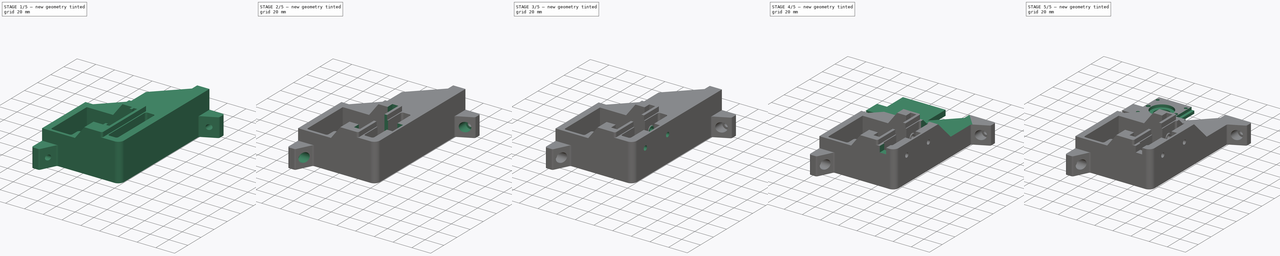
[diagram: build sequence overview — one tinted view per stage of 5, left to right]
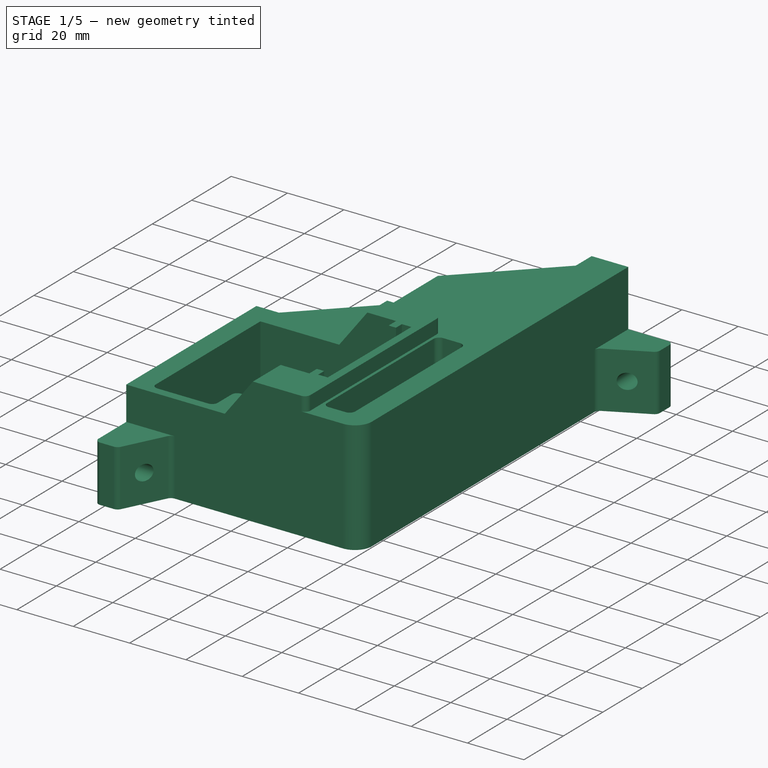
[diagram: stage 1 of 5 — iso view after this stage's code; geometry added in this stage tinted green]
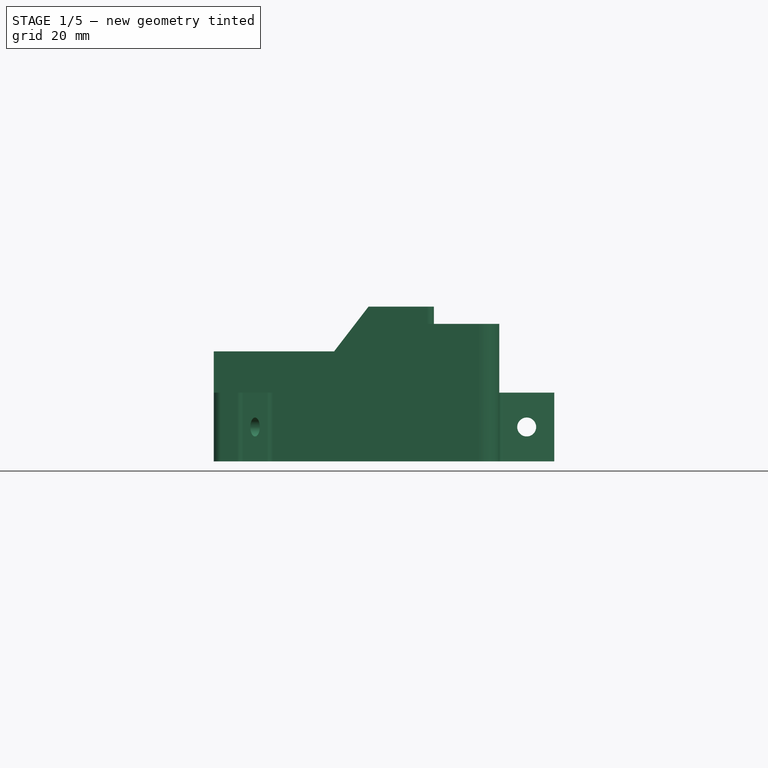
[diagram: stage 1 of 5 — front view after this stage's code; geometry added in this stage tinted green]
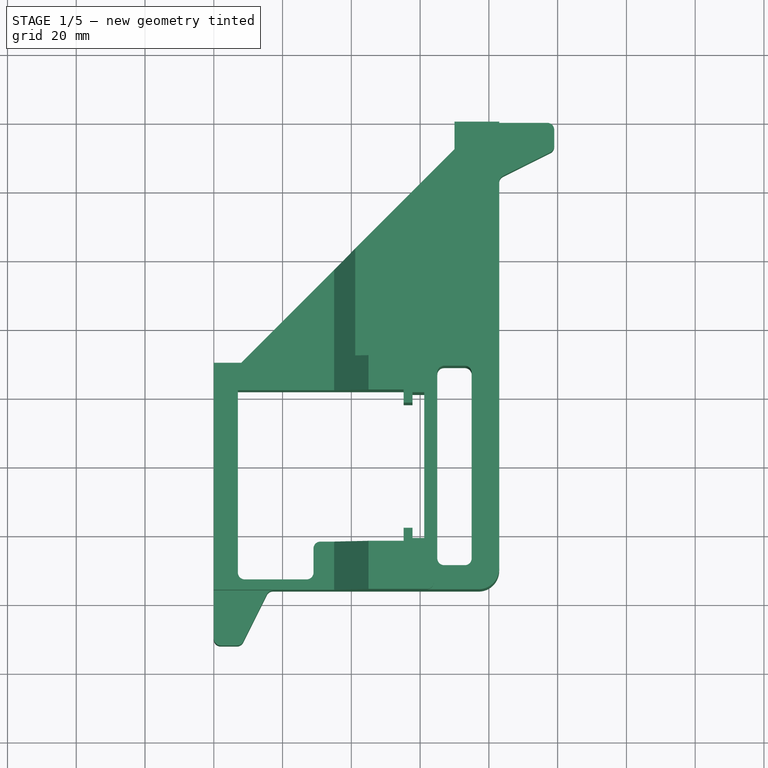
[diagram: stage 1 of 5 — top view after this stage's code; geometry added in this stage tinted green]
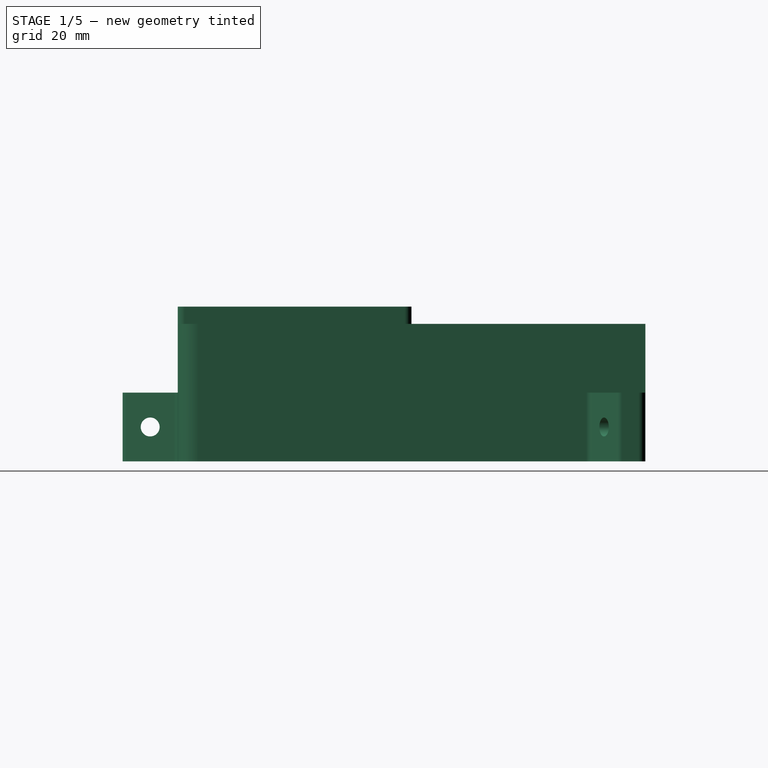
[diagram: stage 1 of 5 — right view after this stage's code; geometry added in this stage tinted green]
FCSTD DOCUMENT  (FreeCAD 1.0R39109 (Git))
Label: mid-drivetrain
License: All rights reserved
LicenseURL: http://en.wikipedia.org/wiki/All_rights_reserved
objects: Sketcher::SketchObject×33, PartDesign::Pocket×16, PartDesign::Pad×4, App::Link×3, PartDesign::Body×2, App::LinkElement×2, PartDesign::LinearPattern×2, PartDesign::Mirrored×1, PartDesign::Groove×1, PartDesign::PolarPattern×1, PartDesign::Revolution×1, App::Part×1
note: 142 computed .brp shape members not serialized (recipe doc carries the construction recipe); baked Part::Feature solids carry a one-line shape summary decoded from their .brp
EXTERNAL_REF file=../general/standard-stuff.FCStd obj=Body084
EXTERNAL_REF file=../general/standard-stuff.FCStd obj=Group002
EXTERNAL_REF file=../general/standard-stuff.FCStd obj=Group001

FEATURE [Sketcher::SketchObject] Sketch169
  ArcFitTolerance = 0
  AttachmentSupport = -> [XY_Plane245]
  FullyConstrained = true
  MakeInternals = false
  MapMode = 5
  sketch-geometry (38):
    g0: LineSegment StartX=65 StartY=-73 StartZ=0 EndX=65 EndY=-127 EndZ=0
    g1: LineSegment StartX=67 StartY=-129 StartZ=0 EndX=73 EndY=-129 EndZ=0
    g2: LineSegment StartX=75 StartY=-127 StartZ=0 EndX=75 EndY=-73 EndZ=0
    g3: LineSegment StartX=73 StartY=-71 StartZ=0 EndX=67 EndY=-71 EndZ=0
    g4: GeomPoint [constr] X=70 Y=-100 Z=0
    g5: LineSegment StartX=97.8944 StartY=-8.55279 StartZ=0 EndX=84.1056 EndY=-15.4472 EndZ=0
    g6: LineSegment StartX=83 StartY=-17.2361 StartZ=0 EndX=83 EndY=-130 EndZ=0
    g7: LineSegment StartX=77 StartY=-136 StartZ=0 EndX=17.2361 EndY=-136 EndZ=0
    g8: LineSegment StartX=15.4472 StartY=-137.106 StartZ=0 EndX=8.55279 EndY=-150.894 EndZ=0
    g9: LineSegment StartX=6.76393 StartY=-152 StartZ=0 EndX=2 EndY=-152 EndZ=0
    g10: LineSegment StartX=99 StartY=-2 StartZ=0 EndX=99 EndY=-6.76393 EndZ=0
    g11: ArcOfCircle CenterX=77 CenterY=-130 CenterZ=0 NormalX=0 NormalY=0 NormalZ=1 AngleXU=0 Radius=6 StartAngle=4.71239 EndAngle=6.28319
    g12: GeomPoint [constr] X=83 Y=-136 Z=0
    g13: ArcOfCircle CenterX=97 CenterY=-2 CenterZ=0 NormalX=0 NormalY=0 NormalZ=1 AngleXU=0 Radius=2 StartAngle=0 EndAngle=1.5708
    g14: GeomPoint [constr] X=99 Y=0 Z=0
    g15: ArcOfCircle CenterX=97 CenterY=-6.76393 CenterZ=0 NormalX=0 NormalY=0 NormalZ=1 AngleXU=0 Radius=2 StartAngle=5.17604 EndAngle=6.28319
    g16: GeomPoint [constr] X=99 Y=-8 Z=0
    g17: ArcOfCircle CenterX=85 CenterY=-17.2361 CenterZ=0 NormalX=0 NormalY=0 NormalZ=1 AngleXU=0 Radius=2 StartAngle=2.03444 EndAngle=3.14159
    g18: GeomPoint [constr] X=83 Y=-16 Z=0
    g19: ArcOfCircle CenterX=73 CenterY=-73 CenterZ=0 NormalX=0 NormalY=0 NormalZ=1 AngleXU=0 Radius=2 StartAngle=-3.6e-15 EndAngle=1.5708
    g20: GeomPoint [constr] X=75 Y=-71 Z=0
    g21: ArcOfCircle CenterX=67 CenterY=-73 CenterZ=0 NormalX=0 NormalY=0 NormalZ=1 AngleXU=0 Radius=2 StartAngle=1.5708 EndAngle=3.14159
    g22: GeomPoint [constr] X=65 Y=-71 Z=0
    g23: ArcOfCircle CenterX=67 CenterY=-127 CenterZ=0 NormalX=0 NormalY=0 NormalZ=1 AngleXU=0 Radius=2 StartAngle=3.14159 EndAngle=4.71239
    g24: GeomPoint [constr] X=65 Y=-129 Z=0
    g25: ArcOfCircle CenterX=73 CenterY=-127 CenterZ=0 NormalX=0 NormalY=0 NormalZ=1 AngleXU=0 Radius=2 StartAngle=4.71239 EndAngle=6.28319
    g26: GeomPoint [constr] X=75 Y=-129 Z=0
    g27: ArcOfCircle CenterX=17.2361 CenterY=-138 CenterZ=0 NormalX=0 NormalY=0 NormalZ=1 AngleXU=0 Radius=2 StartAngle=1.5708 EndAngle=2.67795
    g28: GeomPoint [constr] X=16 Y=-136 Z=0
    g29: ArcOfCircle CenterX=6.76393 CenterY=-150 CenterZ=0 NormalX=0 NormalY=0 NormalZ=1 AngleXU=0 Radius=2 StartAngle=4.71239 EndAngle=5.81954
    g30: GeomPoint [constr] X=8 Y=-152 Z=0
    g31: ArcOfCircle CenterX=2 CenterY=-150 CenterZ=0 NormalX=0 NormalY=0 NormalZ=1 AngleXU=0 Radius=2 StartAngle=3.14159 EndAngle=4.71239
    g32: GeomPoint [constr] X=0 Y=-152 Z=0
    g33: LineSegment StartX=0 StartY=-150 StartZ=0 EndX=0 EndY=-70 EndZ=0
    g34: LineSegment StartX=0 StartY=-70 StartZ=0 EndX=8 EndY=-70 EndZ=0
    g35: LineSegment StartX=8 StartY=-70 StartZ=0 EndX=70 EndY=-8 EndZ=0
    g36: LineSegment StartX=70 StartY=-8 StartZ=0 EndX=70 EndY=0 EndZ=0
    g37: LineSegment StartX=70 StartY=0 StartZ=0 EndX=97 EndY=0 EndZ=0
  constraints (90):
    c: Vertical(g0)
    c: Horizontal(g1)
    c: Vertical(g2)
    c: Horizontal(g3)
    c: Symmetric(g26,g22,g4)
    c: DistanceX(g24,g26) = 10
    c: DistanceY(g26,g20) = 58
    c: Vertical(g6)
    c: Horizontal(g7)
    c: Horizontal(g9)
    c: Vertical(g10)
    c: PointOnObject(g12,g6)
    c: PointOnObject(g12,g7)
    c: Tangent(g6,g11) = 1.5708
    c: Tangent(g7,g11) = 1.5708
    c: Radius(g11) = 6
    c: DistanceX(g32,g30) = 8
    c: DistanceX(g30,g28) = 8
    c: DistanceY(g30,g28) = 16
    c: DistanceY(g18,g16) = 8
    c: DistanceX(g18,g16) = 16
    c: PointOnObject(g14,g10)
    c: Tangent(g10,g13) = 1.5708
    c: PointOnObject(g16,g10)
    c: PointOnObject(g16,g5)
    c: Tangent(g10,g15) = 1.5708
    c: Tangent(g5,g15) = 1.5708
    c: PointOnObject(g18,g6)
    c: PointOnObject(g18,g5)
    c: Tangent(g6,g17) = -1.5708
    c: Tangent(g5,g17) = -1.5708
    c: PointOnObject(g20,g2)
    c: PointOnObject(g20,g3)
    c: Tangent(g2,g19) = -1.5708
    c: Tangent(g3,g19) = -1.5708
    c: PointOnObject(g22,g0)
    c: PointOnObject(g22,g3)
    c: Tangent(g0,g21) = -1.5708
    c: Tangent(g3,g21) = -1.5708
    c: PointOnObject(g24,g0)
    c: PointOnObject(g24,g1)
    c: Tangent(g0,g23) = -1.5708
    c: Tangent(g1,g23) = -1.5708
    c: PointOnObject(g26,g1)
    c: PointOnObject(g26,g2)
    c: Tangent(g1,g25) = -1.5708
    c: Tangent(g2,g25) = -1.5708
    c: PointOnObject(g28,g7)
    c: PointOnObject(g28,g8)
    c: Tangent(g7,g27) = -1.5708
    c: Tangent(g8,g27) = -1.5708
    c: PointOnObject(g30,g8)
    c: PointOnObject(g30,g9)
    c: Tangent(g8,g29) = 1.5708
    c: Tangent(g9,g29) = 1.5708
    c: PointOnObject(g32,g9)
    c: Tangent(g9,g31) = 1.5708
    c: Equal(g13,g15)
    c: Equal(g15,g17)
    c: Equal(g17,g19)
    c: Equal(g19,g21)
    c: Equal(g21,g23)
    c: Equal(g23,g25)
    c: Equal(g25,g27)
    c: Equal(g27,g29)
    c: DistanceY(g16,g14) = 8
    c: Equal(g31,g29)
    c: Radius(g13) = 2
    c: DistanceY(g28) = -136
    c: Tangent(g31,g33) = 1.5708
    c: Coincident(g33,g34)
    c: Horizontal(g34)
    c: Coincident(g34,g35)
    c: Coincident(g35,g36)
    c: PointOnObject(g36,g-1)
    c: Vertical(g36)
    c: Coincident(g36,g37)
    c: Horizontal(g37)
    c: Angle(g35) = 0.785398
    c: Equal(g36,g34)
    c: DistanceY(g36,g36) = 8
    c: DistanceX(g36) = 70
    c: Vertical(g33)
    c: PointOnObject(g32,g33)
    c: PointOnObject(g32,g-2)
    c: Tangent(g37,g13) = 1.5708
    c: PointOnObject(g14,g37)
    c: DistanceX(g4) = 70
    c: DistanceY(g4) = -100
    c: DistanceX(g12) = 83
FEATURE [PartDesign::Pad] Pad049
  Direction = (0,0,1)
  Length = 50
  Length2 = 10
  Profile = -> Sketch169
  ReferenceAxis = -> Sketch169 [N_Axis]
  Suppressed = false
  Type = 0
FEATURE [PartDesign::Body] Body111  label="z-motion-mid-motor-mount"
  AllowCompound = false
  Group = -> [Sketch203,Sketch204,Pad052,Sketch205,Pocket125,Mirrored027,Pocket126,Sketch206,Groove003,PolarPattern005,Sketch207,Sketch208,Sketch209,Sketch210,Pocket130]
  Origin = -> Origin245
  Placement = pos=(61,-100,25) rot=(-0.57735,-0.57735,0.57735;2.0944rad)
  Tip = -> Pocket130
FEATURE [App::LinkElement] Link_i0
  LinkedObject = -> <external ../general/standard-stuff.FCStd>#Body084
  _LinkOwner = 4309
FEATURE [App::LinkElement] Link_i1
  LinkPlacement = pos=(0,-34,0) rot=(0,0,1;0rad)
  LinkedObject = -> <external ../general/standard-stuff.FCStd>#Body084
  Placement = pos=(0,-34,0) rot=(0,0,1;0rad)
  _LinkOwner = 4309
FEATURE [App::Link] Link  label="idler-1"
  ElementCount = 2
  ElementList = -> [Link_i0,Link_i1]
  LinkPlacement = pos=(70,-83,28) rot=(0,1,0;1.5708rad)
  LinkedObject = -> <external ../general/standard-stuff.FCStd>#Body084
  Placement = pos=(70,-83,28) rot=(0,1,0;1.5708rad)
FEATURE [App::Link] Link001  label="z-motor"
  LinkPlacement = pos=(55,-100,25) rot=(0,-1,0;1.5708rad)
  LinkedObject = -> <external ../general/standard-stuff.FCStd>#Group002 [Body018.]
  Placement = pos=(55,-100,25) rot=(0,-1,0;1.5708rad)
FEATURE [App::Link] Link002  label="pulley"
  LinkPlacement = pos=(70,-100,25) rot=(0,1,0;1.5708rad)
  LinkedObject = -> <external ../general/standard-stuff.FCStd>#Group001 [Body065.]
  Placement = pos=(70,-100,25) rot=(0,1,0;1.5708rad)
FEATURE [PartDesign::Pocket] Pocket
  BaseFeature = -> Pad049
  Direction = (0,1,-2e-16)
  Length = 5
  Length2 = 5
  Profile = -> Sketch170
  ReferenceAxis = -> Sketch170 [N_Axis]
  Reversed = true
  Suppressed = false
  Type = 1
FEATURE [PartDesign::Pocket] Pocket131
  BaseFeature = -> Pocket
  Direction = (-1,0,0)
  Length = 5
  Length2 = 5
  Profile = -> Sketch171
  ReferenceAxis = -> Sketch171 [N_Axis]
  Reversed = true
  Suppressed = false
  Type = 1
FEATURE [PartDesign::Pocket] Pocket132
  BaseFeature = -> Pocket131
  Direction = (0,0,-1)
  Length = 5
  Length2 = 5
  Profile = -> Sketch175
  ReferenceAxis = -> Sketch175 [N_Axis]
  Reversed = true
  Suppressed = false
  Type = 1
FEATURE [PartDesign::Pocket] Pocket133
  BaseFeature = -> Pocket132
  Direction = (0,0,-1)
  Length = 5
  Length2 = 5
  Midplane = true
  Profile = -> Sketch186
  ReferenceAxis = -> Sketch186 [N_Axis]
  Suppressed = false
  Type = 1
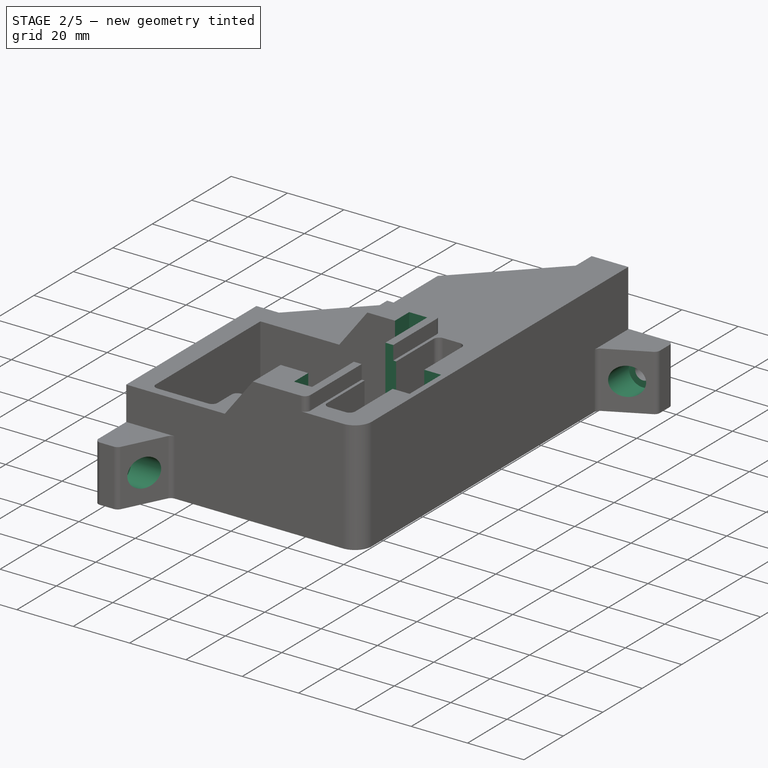
[diagram: stage 2 of 5 — iso view after this stage's code; geometry added in this stage tinted green]
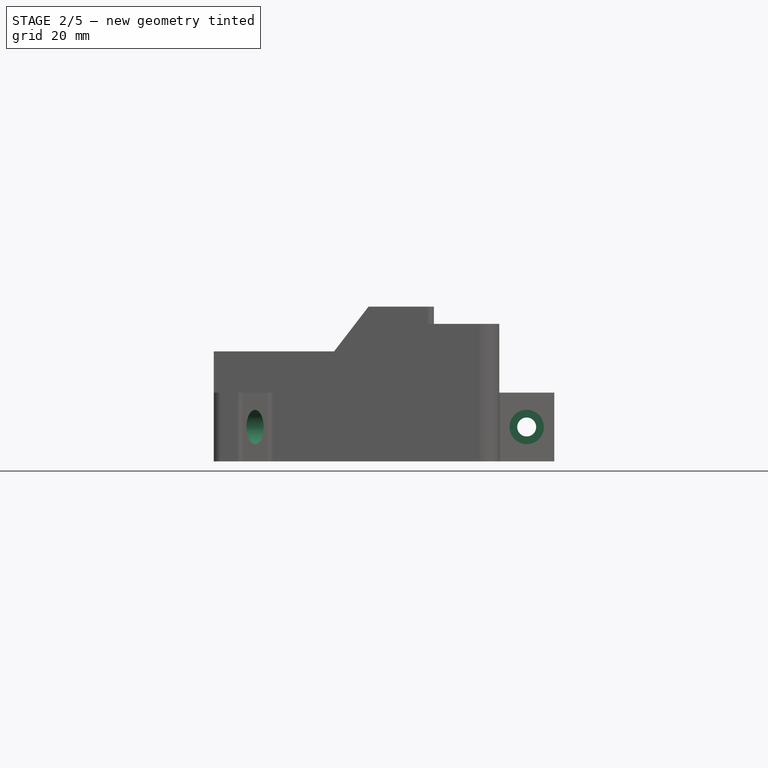
[diagram: stage 2 of 5 — front view after this stage's code; geometry added in this stage tinted green]
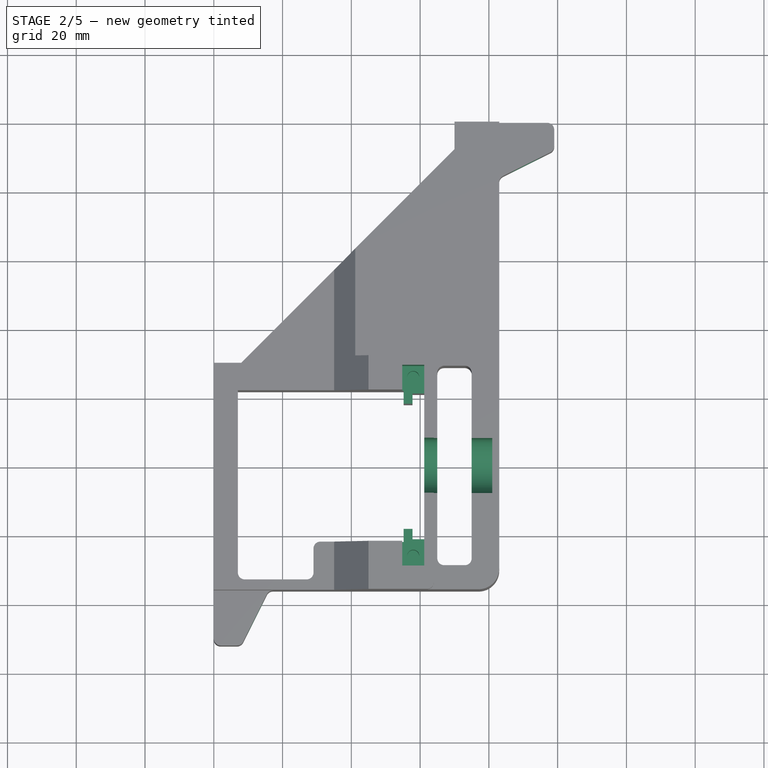
[diagram: stage 2 of 5 — top view after this stage's code; geometry added in this stage tinted green]
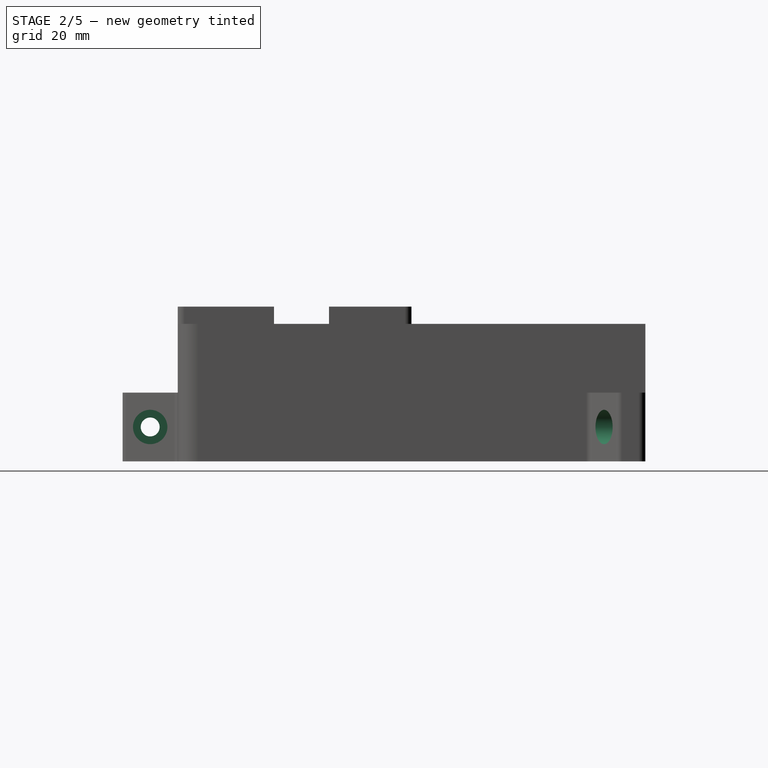
[diagram: stage 2 of 5 — right view after this stage's code; geometry added in this stage tinted green]
FEATURE [PartDesign::Pocket] Pocket134
  BaseFeature = -> Pocket133
  Direction = (0,0,-1)
  Length = 5
  Length2 = 5
  Profile = -> Sketch187
  ReferenceAxis = -> Sketch187 [N_Axis]
  Reversed = true
  Suppressed = false
  Type = 1
FEATURE [PartDesign::Pocket] Pocket135
  BaseFeature = -> Pocket134
  Direction = (-1,0,0)
  Length = 5
  Length2 = 5
  Profile = -> Sketch197
  ReferenceAxis = -> Sketch197 [N_Axis]
  Reversed = true
  Suppressed = false
  Type = 1
FEATURE [PartDesign::Pocket] Pocket136
  BaseFeature = -> Pocket135
  Direction = (-1,0,0)
  Length = 20
  Length2 = 5
  Profile = -> Sketch191
  ReferenceAxis = -> Sketch191 [N_Axis]
  Reversed = true
  Suppressed = false
  Type = 0
FEATURE [PartDesign::Pocket] Pocket137
  BaseFeature = -> Pocket136
  Direction = (0,1,-2e-16)
  Length = 5
  Length2 = 5
  Profile = -> Sketch198
  ReferenceAxis = -> Sketch198 [N_Axis]
  Reversed = true
  Suppressed = false
  Type = 1
FEATURE [PartDesign::Pocket] Pocket138
  BaseFeature = -> Pocket137
  Direction = (0,0,-1)
  Length = 5
  Length2 = 5
  Profile = -> Sketch189
  ReferenceAxis = -> Sketch189 [N_Axis]
  Reversed = true
  Suppressed = false
  Type = 1
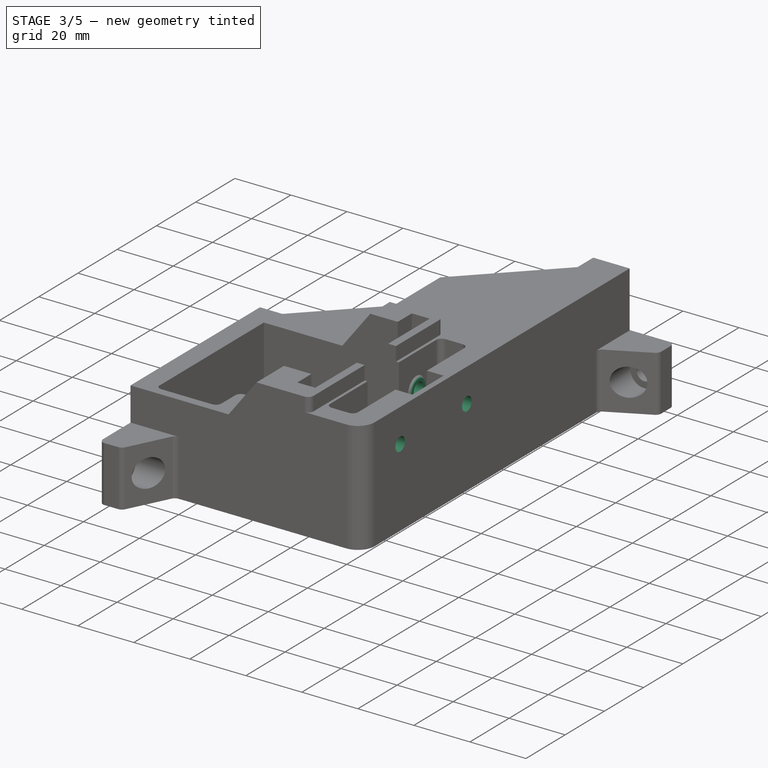
[diagram: stage 3 of 5 — iso view after this stage's code; geometry added in this stage tinted green]
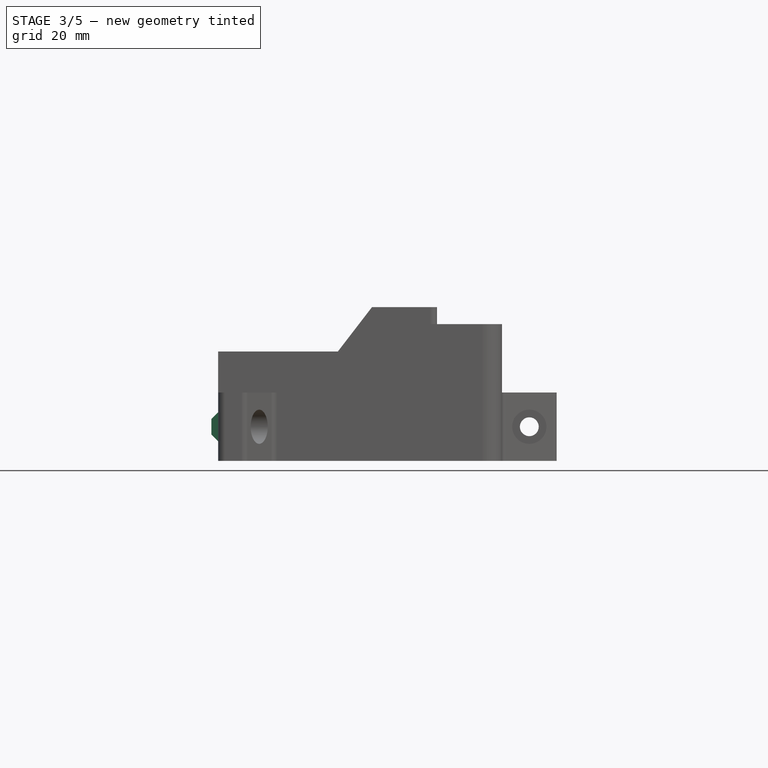
[diagram: stage 3 of 5 — front view after this stage's code; geometry added in this stage tinted green]
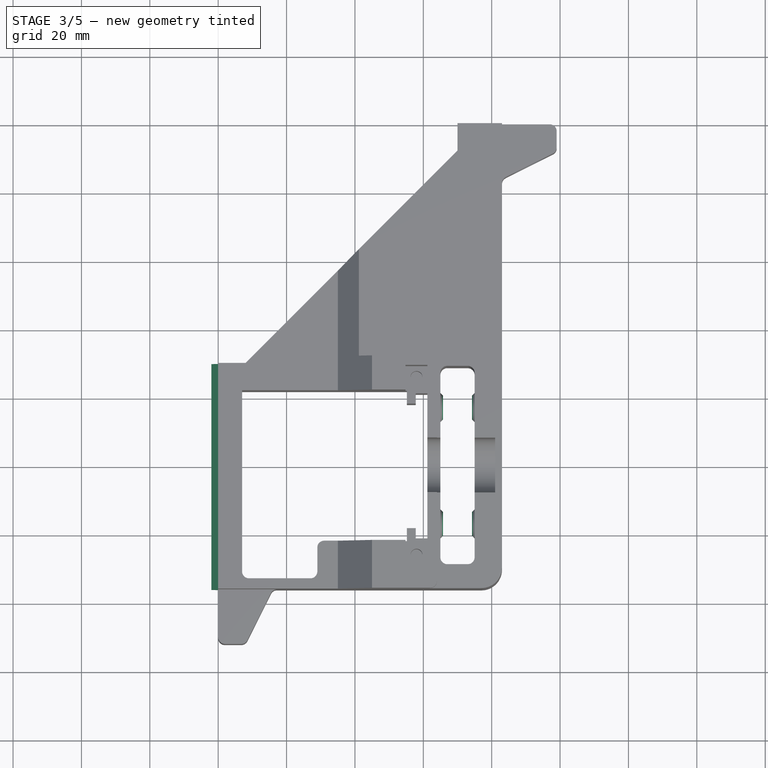
[diagram: stage 3 of 5 — top view after this stage's code; geometry added in this stage tinted green]
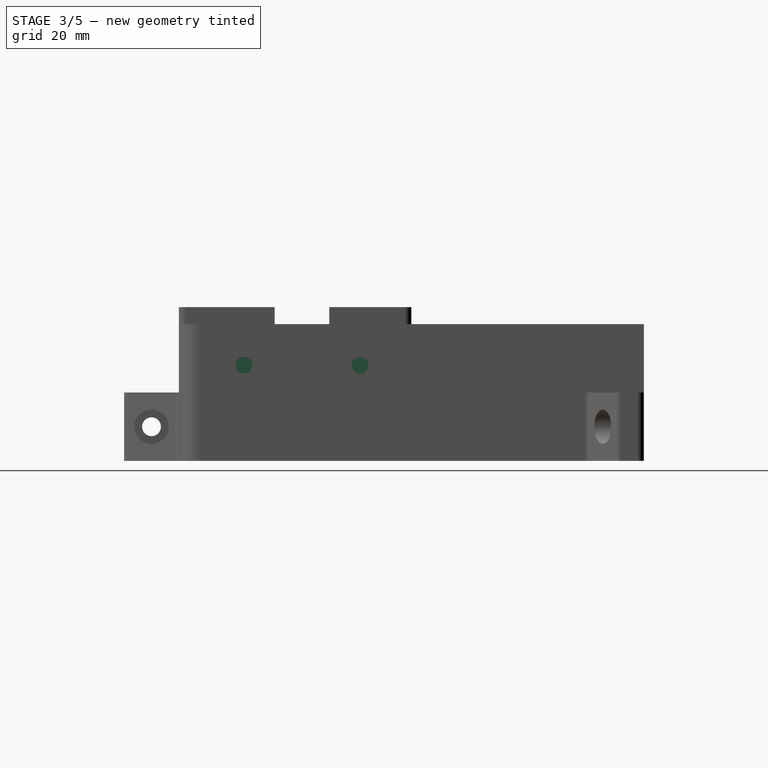
[diagram: stage 3 of 5 — right view after this stage's code; geometry added in this stage tinted green]
FEATURE [PartDesign::Pocket] Pocket139
  BaseFeature = -> Pocket138
  Direction = (0,0,-1)
  Length = 5
  Length2 = 5
  Profile = -> Sketch190
  ReferenceAxis = -> Sketch190 [N_Axis]
  Suppressed = false
  Type = 1
FEATURE [PartDesign::LinearPattern] LinearPattern
  BaseFeature = -> Pocket139
  Direction = -> Y_Axis246
  Length = 52
  Mode = 0
  Occurrences = 2
  Offset = 52
  Originals = -> [Pocket139]
  Reversed = true
  Suppressed = false
  TransformMode = 0
FEATURE [PartDesign::Revolution] Revolution
  Angle = 360
  Angle2 = 60
  Axis = (1,0,0)
  Base = (74.25,-83,28)
  BaseFeature = -> LinearPattern
  Profile = -> Sketch364
  ReferenceAxis = -> Sketch364 [Edge3]
  Reversed = true
  Suppressed = false
  Type = 0
FEATURE [PartDesign::LinearPattern] LinearPattern001
  BaseFeature = -> Revolution
  Direction = -> Y_Axis246
  Length = 34
  Mode = 0
  Occurrences = 2
  Offset = 34
  Originals = -> [Revolution]
  Reversed = true
  Suppressed = false
  TransformMode = 0
FEATURE [PartDesign::Pocket] Pocket140
  BaseFeature = -> LinearPattern001
  Direction = (-1,0,0)
  Length = 5
  Length2 = 5
  Profile = -> Sketch185
  ReferenceAxis = -> Sketch185 [N_Axis]
  Reversed = true
  Suppressed = false
  Type = 1
FEATURE [PartDesign::Body] Body112  label="z-motion-mid-drivetrain"
  AllowCompound = false
  Group = -> [Sketch169,Pad049,Sketch170,Sketch171,Sketch172,Sketch173,Sketch174,Sketch175,Sketch176,Sketch177,Sketch178,Sketch185,Sketch186,Sketch187,Sketch188,Sketch189,Sketch190,Sketch191,Sketch195,Sketch197,Sketch198,Sketch364,Sketch367,Sketch368,Sketch375,Pocket,Pocket131,Pocket132,Pocket133,Pocket134,Pocket135,Pocket136,Pocket137,Pocket138,Pocket139,LinearPattern,Revolution,LinearPattern001,Pocket140,Pad,+4 more]
  Origin = -> Origin246
  Tip = -> Pocket142
FEATURE [App::Part] Part  label="main"
  Group = -> [Body112,Body111,Link,Link001,Link002]
  Origin = -> Origin

RESOLVED EXTERNAL PARTS (link-assembly join: the EXTERNAL_REF files above that resolve inside this repo's crawl, each included once):
---- part ../general/standard-stuff.FCStd = doc fcstd_6792681b6910 ----
FCSTD DOCUMENT  (FreeCAD 1.0R38806 (Git))
Label: standard-stuff
License: All rights reserved
LicenseURL: http://en.wikipedia.org/wiki/All_rights_reserved
objects: Sketcher::SketchObject×13, PartDesign::Body×8, PartDesign::Pad×7, App::DocumentObjectGroup×4, PartDesign::Revolution×3, PartDesign::Pocket×3
note: 73 computed .brp shape members not serialized (recipe doc carries the construction recipe); baked Part::Feature solids carry a one-line shape summary decoded from their .brp

FEATURE [Sketcher::SketchObject] Sketch129
  ArcFitTolerance = 0
  AttachmentSupport = -> [XZ_Plane218]
  FullyConstrained = true
  MakeInternals = false
  MapMode = 5
  Placement = pos=(0,0,0) rot=(1,0,0;1.5708rad)
  sketch-geometry (8):
    g0: LineSegment StartX=2.5 StartY=4.25 StartZ=0 EndX=2.5 EndY=-4.25 EndZ=0
    g1: LineSegment StartX=2.5 StartY=-4.25 StartZ=0 EndX=8 EndY=-4.25 EndZ=0
    g2: LineSegment StartX=8 StartY=-4.25 StartZ=0 EndX=8 EndY=-3.25 EndZ=0
    g3: LineSegment StartX=8 StartY=-3.25 StartZ=0 EndX=6.1 EndY=-3.25 EndZ=0
    g4: LineSegment StartX=6.1 StartY=-3.25 StartZ=0 EndX=6.1 EndY=3.25 EndZ=0
    g5: LineSegment StartX=6.1 StartY=3.25 StartZ=0 EndX=8 EndY=3.25 EndZ=0
    g6: LineSegment StartX=8 StartY=3.25 StartZ=0 EndX=8 EndY=4.25 EndZ=0
    g7: LineSegment StartX=8 StartY=4.25 StartZ=0 EndX=2.5 EndY=4.25 EndZ=0
  constraints (22):
    c: Coincident(g1,g0)
    c: Coincident(g2,g1)
    c: Coincident(g3,g2)
    c: Coincident(g4,g3)
    c: Vertical(g6)
    c: Coincident(g7,g6)
    c: Coincident(g7,g0)
    c: Coincident(g6,g5)
    c: Horizontal(g1)
    c: Horizontal(g3)
    c: Horizontal(g5)
    c: Coincident(g5,g4)
    c: Vertical(g2)
    c: Horizontal(g7)
    c: Symmetric(g1,g6,g-1)
    c: Symmetric(g4,g3,g-1)
    c: DistanceY(g2,g2) = 1
    c: DistanceY(g4,g4) = 6.5
    c: DistanceX(g4) = 6.1
    c: Vertical(g0)
    c: DistanceX(g0) = 2.5
    c: DistanceX(g6) = 8
FEATURE [PartDesign::Revolution] Revolution014
  Angle = 360
  Angle2 = 60
  Axis = (0,2e-16,1)
  Base = (0,0,0)
  Placement = pos=(0,0,0) rot=(1,0,0;1.5708rad)
  Profile = -> Sketch129
  ReferenceAxis = -> Sketch129 [V_Axis]
  Reversed = true
  Suppressed = false
  Type = 0
FEATURE [PartDesign::Body] Body084  label="idler-20t"
  AllowCompound = false
  Group = -> [Sketch129,Revolution014]
  Origin = -> Origin218
  Tip = -> Revolution014
FEATURE [App::DocumentObjectGroup] Group  label="gt2-idlers"
  Group = -> [Body084]
FEATURE [Sketcher::SketchObject] Sketch029
  ArcFitTolerance = 0
  AttachmentSupport = -> [XY_Plane033]
  FullyConstrained = true
  MakeInternals = false
  MapMode = 5
  sketch-geometry (6):
    g0: LineSegment StartX=-5 StartY=-10 StartZ=0 EndX=-3 EndY=-12 EndZ=0
    g1: LineSegment StartX=-3 StartY=-12 StartZ=0 EndX=3 EndY=-12 EndZ=0
    g2: LineSegment StartX=3 StartY=-12 StartZ=0 EndX=5 EndY=-10 EndZ=0
    g3: LineSegment StartX=5 StartY=-10 StartZ=0 EndX=5 EndY=-2.5 EndZ=0
    g4: LineSegment StartX=5 StartY=-2.5 StartZ=0 EndX=-5 EndY=-2.5 EndZ=0
    g5: LineSegment StartX=-5 StartY=-2.5 StartZ=0 EndX=-5 EndY=-10 EndZ=0
  constraints (15):
    c: Coincident(g1,g0)
    c: Coincident(g2,g1)
    c: Coincident(g3,g2)
    c: Vertical(g3)
    c: Coincident(g4,g3)
    c: Coincident(g5,g4)
    c: Coincident(g5,g0)
    c: Symmetric(g4,g3,g-2)
    c: Symmetric(g0,g2,g-2)
    c: Symmetric(g0,g1,g-2)
    c: Angle(g2) = 0.785398
    c: DistanceY(g1) = -12
    c: DistanceX(g4,g4) = 10
    c: DistanceX(g1,g1) = 6
    c: DistanceY(g4) = -2.5
FEATURE [PartDesign::Revolution] Revolution
  Angle = 360
  Angle2 = 60
  Axis = (1,0,0)
  Base = (0,0,0)
  Profile = -> Sketch029
  ReferenceAxis = -> Sketch029 [H_Axis]
  Reversed = true
  Suppressed = false
  Type = 0
FEATURE [PartDesign::Body] Body033  label="v-wheel"
  AllowCompound = false
  Group = -> [Sketch029,Revolution]
  Origin = -> Origin033
  Tip = -> Revolution
FEATURE [Sketcher::SketchObject] Sketch007
  ArcFitTolerance = 0
  AttachmentSupport = -> [XY_Plane018]
  FullyConstrained = true
  MakeInternals = false
  MapMode = 5
  sketch-geometry (10):
    g0: LineSegment StartX=-21 StartY=21 StartZ=0 EndX=21 EndY=21 EndZ=0
    g1: LineSegment StartX=21 StartY=21 StartZ=0 EndX=21 EndY=-21 EndZ=0
    g2: LineSegment StartX=21 StartY=-21 StartZ=0 EndX=-21 EndY=-21 EndZ=0
    g3: LineSegment StartX=-21 StartY=-21 StartZ=0 EndX=-21 EndY=21 EndZ=0
    g4: Circle CenterX=-15.5 CenterY=15.5 CenterZ=0 NormalX=0 NormalY=0 NormalZ=1 AngleXU=0 Radius=1.75
    g5: Circle CenterX=15.5 CenterY=15.5 CenterZ=0 NormalX=0 NormalY=0 NormalZ=1 AngleXU=0 Radius=1.75
    g6: Circle CenterX=15.5 CenterY=-15.5 CenterZ=0 NormalX=0 NormalY=0 NormalZ=1 AngleXU=0 Radius=1.75
    g7: Circle CenterX=-15.5 CenterY=-15.5 CenterZ=0 NormalX=0 NormalY=0 NormalZ=1 AngleXU=0 Radius=1.75
    g8: LineSegment [constr] StartX=15.5 StartY=15.5 StartZ=0 EndX=-15.5 EndY=15.5 EndZ=0
    g9: LineSegment [constr] StartX=15.5 StartY=15.5 StartZ=0 EndX=15.5 EndY=-15.5 EndZ=0
  constraints (26):
    c: Coincident(g0,g1)
    c: Coincident(g1,g2)
    c: Coincident(g2,g3)
    c: Coincident(g3,g0)
    c: Horizontal(g0)
    c: Horizontal(g2)
    c: Vertical(g1)
    c: Vertical(g3)
    c: Equal(g2,g1)
    c: DistanceX(g0,g0) = 42
    c: Symmetric(g0,g2,g-1)
    c: Symmetric(g7,g5,g-1)
    c: Vertical(g6,g5)
    c: Horizontal(g5,g4)
    c: Vertical(g4,g7)
    c: Horizontal(g7,g6)
    c: Equal(g6,g5)
    c: Equal(g5,g4)
    c: Equal(g4,g7)
    c: Diameter(g5) = 3.5
    c: Coincident(g8,g5)
    c: Coincident(g8,g4)
    c: Coincident(g9,g5)
    c: Coincident(g9,g6)
    c: Equal(g9,g8)
    c: DistanceX(g8,g8) = 31
FEATURE [PartDesign::Pad] Pad005
  Direction = (0,0,1)
  Length = 42
  Length2 = 10
  Profile = -> Sketch007
  ReferenceAxis = -> Sketch007 [N_Axis]
  Suppressed = false
  Type = 0
FEATURE [Sketcher::SketchObject] Sketch008
  ArcFitTolerance = 0
  AttachmentSupport = -> [XY_Plane018]
  FullyConstrained = true
  MakeInternals = false
  MapMode = 5
  sketch-geometry (1):
    g0: Circle CenterX=0 CenterY=0 CenterZ=0 NormalX=0 NormalY=0 NormalZ=1 AngleXU=0 Radius=11.5
  constraints (2):
    c: Coincident(g0,g-1)
    c: Diameter(g0) = 23
FEATURE [PartDesign::Pad] Pad006
  BaseFeature = -> Pad005
  Direction = (0,0,1)
  Length = 3
  Length2 = 10
  Profile = -> Sketch008
  ReferenceAxis = -> Sketch008 [N_Axis]
  Reversed = true
  Suppressed = false
  Type = 0
FEATURE [Sketcher::SketchObject] Sketch009
  ArcFitTolerance = 0
  AttachmentOffset = pos=(0,0,-3) rot=(0,0,1;0rad)
  AttachmentSupport = -> [XY_Plane018]
  FullyConstrained = true
  MakeInternals = false
  MapMode = 5
  Placement = pos=(0,0,-3) rot=(0,0,1;0rad)
  sketch-geometry (1):
    g0: Circle CenterX=0 CenterY=0 CenterZ=0 NormalX=0 NormalY=0 NormalZ=1 AngleXU=0 Radius=2.5
  constraints (2):
    c: Coincident(g0,g-1)
    c: Diameter(g0) = 5
FEATURE [PartDesign::Pad] Pad007
  BaseFeature = -> Pad006
  Direction = (0,0,1)
  Length = 20
  Length2 = 10
  Profile = -> Sketch009
  ReferenceAxis = -> Sketch009 [N_Axis]
  Reversed = true
  Suppressed = false
  Type = 0
FEATURE [PartDesign::Body] Body018  label="nema-17"
  AllowCompound = false
  Group = -> [Sketch007,Pad005,Sketch008,Pad006,Sketch009,Pad007]
  Origin = -> Origin018
  Tip = -> Pad007
FEATURE [App::DocumentObjectGroup] Group002  label="stepper-motors"
  Group = -> [Body018]
FEATURE [Sketcher::SketchObject] Sketch
  ArcFitTolerance = 1e-06
  AttachmentSupport = -> [XY_Plane]
  FullyConstrained = true
  MakeInternals = false
  MapMode = 5
  sketch-geometry (2):
    g0: Circle CenterX=0 CenterY=0 CenterZ=0 NormalX=0 NormalY=0 NormalZ=1 AngleXU=0 Radius=4
    g1: Circle CenterX=0 CenterY=0 CenterZ=0 NormalX=0 NormalY=0 NormalZ=1 AngleXU=0 Radius=10.5
  constraints (4):
    c: Coincident(g0,g-1)
    c: Coincident(g1,g0)
    c: Diameter(g0) = 8
    c: Diameter(g1) = 21
FEATURE [PartDesign::Pad] Pad
  Direction = (0,0,1)
  Length = 7
  Length2 = 10
  Midplane = true
  Profile = -> Sketch
  ReferenceAxis = -> Sketch [N_Axis]
  Suppressed = false
  Type = 0
FEATURE [PartDesign::Body] Body  label="bearing-608"
  AllowCompound = false
  Group = -> [Sketch,Pad]
  Origin = -> Origin
  Tip = -> Pad
FEATURE [App::DocumentObjectGroup] Group003  label="bearings"
  Group = -> [Body]
FEATURE [Sketcher::SketchObject] Sketch095
  ArcFitTolerance = 0
  AttachmentSupport = -> [XY_Plane199]
  FullyConstrained = true
  MakeInternals = false
  MapMode = 5
  sketch-geometry (2):
    g0: Circle CenterX=0 CenterY=0 CenterZ=0 NormalX=0 NormalY=0 NormalZ=1 AngleXU=0 Radius=6.5
    g1: Circle CenterX=0 CenterY=0 CenterZ=0 NormalX=0 NormalY=0 NormalZ=1 AngleXU=0 Radius=2.55
  constraints (4):
    c: Coincident(g0,g-1)
    c: Diameter(g0) = 13
    c: Coincident(g1,g0)
    c: Diameter(g1) = 5.1
FEATURE [PartDesign::Pad] Pad026
  Direction = (0,0,1)
  Length = 9.75
  Length2 = 4.25
  Profile = -> Sketch095
  ReferenceAxis = -> Sketch095 [N_Axis]
  Suppressed = false
  Type = 4
FEATURE [Sketcher::SketchObject] Sketch096
  ArcFitTolerance = 0
  AttachmentSupport = -> [XY_Plane199]
  FullyConstrained = true
  MakeInternals = false
  MapMode = 5
  sketch-geometry (2):
    g0: Circle CenterX=0 CenterY=0 CenterZ=0 NormalX=0 NormalY=0 NormalZ=1 AngleXU=0 Radius=4.75
    g1: Circle CenterX=0 CenterY=0 CenterZ=0 NormalX=0 NormalY=0 NormalZ=1 AngleXU=0 Radius=6.5
  constraints (4):
    c: Coincident(g0,g-1)
    c: Coincident(g1,g0)
    c: Diameter(g0) = 9.5
    c: Diameter(g1) = 13
FEATURE [PartDesign::Pocket] Pocket046
  BaseFeature = -> Pad026
  Direction = (0,0,-1)
  Length = 6.5
  Length2 = 5
  Midplane = true
  Profile = -> Sketch096
  ReferenceAxis = -> Sketch096 [N_Axis]
  Suppressed = false
  Type = 0
FEATURE [PartDesign::Body] Body065  label="pulley-16t-5mm"
  AllowCompound = false
  Group = -> [Sketch095,Pad026,Sketch096,Pocket046]
  Origin = -> Origin199
  Tip = -> Pocket046
FEATURE [Sketcher::SketchObject] Sketch098
  ArcFitTolerance = 0
  AttachmentSupport = -> [XY_Plane205]
  FullyConstrained = true
  MakeInternals = false
  MapMode = 5
  sketch-geometry (2):
    g0: Circle CenterX=0 CenterY=0 CenterZ=0 NormalX=0 NormalY=0 NormalZ=1 AngleXU=0 Radius=7.75
    g1: Circle CenterX=0 CenterY=0 CenterZ=0 NormalX=0 NormalY=0 NormalZ=1 AngleXU=0 Radius=4
  constraints (4):
    c: Coincident(g0,g-1)
    c: Diameter(g0) = 15.5
    c: Coincident(g1,g0)
    c: Diameter(g1) = 8
FEATURE [PartDesign::Pad] Pad029
  Direction = (0,0,1)
  Length = 11.25
  Length2 = 4.25
  Profile = -> Sketch098
  ReferenceAxis = -> Sketch098 [N_Axis]
  Suppressed = false
  Type = 4
FEATURE [Sketcher::SketchObject] Sketch099
  ArcFitTolerance = 0
  AttachmentSupport = -> [XY_Plane205]
  FullyConstrained = true
  MakeInternals = false
  MapMode = 5
  sketch-geometry (2):
    g0: Circle CenterX=0 CenterY=0 CenterZ=0 NormalX=0 NormalY=0 NormalZ=1 AngleXU=0 Radius=6.1
    g1: Circle CenterX=0 CenterY=0 CenterZ=0 NormalX=0 NormalY=0 NormalZ=1 AngleXU=0 Radius=7.75
  constraints (4):
    c: Coincident(g0,g-1)
    c: Coincident(g1,g0)
    c: Diameter(g1) = 15.5
    c: Diameter(g0) = 12.2
FEATURE [PartDesign::Pocket] Pocket047
  BaseFeature = -> Pad029
  Direction = (0,0,-1)
  Length = 6.5
  Length2 = 5
  Midplane = true
  Profile = -> Sketch099
  ReferenceAxis = -> Sketch099 [N_Axis]
  Suppressed = false
  Type = 0
FEATURE [PartDesign::Body] Body071  label="pulley-20t-8mm"
  AllowCompound = false
  Group = -> [Sketch098,Pad029,Sketch099,Pocket047]
  Origin = -> Origin205
  Tip = -> Pocket047
FEATURE [Sketcher::SketchObject] Sketch167
  ArcFitTolerance = 0
  AttachmentSupport = -> [YZ_Plane236]
  FullyConstrained = true
  MakeInternals = false
  MapMode = 5
  Placement = pos=(0,0,0) rot=(0.57735,0.57735,0.57735;2.0944rad)
  sketch-geometry (10):
    g0: LineSegment StartX=-4.5 StartY=12.5 StartZ=0 EndX=-4.5 EndY=4 EndZ=0
    g1: LineSegment StartX=-4.5 StartY=4 StartZ=0 EndX=11.5 EndY=4 EndZ=0
    g2: LineSegment StartX=11.5 StartY=4 StartZ=0 EndX=11.5 EndY=8.25 EndZ=0
    g3: LineSegment StartX=11.5 StartY=8.25 StartZ=0 EndX=4.5 EndY=8.25 EndZ=0
    g4: LineSegment StartX=4.5 StartY=8.25 StartZ=0 EndX=4.5 EndY=12.5 EndZ=0
    g5: LineSegment StartX=4.5 StartY=12.5 StartZ=0 EndX=3.5 EndY=12.5 EndZ=0
    g6: LineSegment StartX=3.5 StartY=12.5 StartZ=0 EndX=3.5 EndY=9.93 EndZ=0
    g7: LineSegment StartX=3.5 StartY=9.93 StartZ=0 EndX=-3.5 EndY=9.93 EndZ=0
    g8: LineSegment StartX=-3.5 StartY=9.93 StartZ=0 EndX=-3.5 EndY=12.5 EndZ=0
    g9: LineSegment StartX=-3.5 StartY=12.5 StartZ=0 EndX=-4.5 EndY=12.5 EndZ=0
  constraints (28):
    c: Vertical(g0)
    c: Coincident(g1,g0)
    c: Horizontal(g1)
    c: Coincident(g2,g1)
    c: Vertical(g2)
    c: Coincident(g3,g2)
    c: Horizontal(g3)
    c: Coincident(g4,g3)
    c: Vertical(g4)
    c: Coincident(g5,g4)
    c: Horizontal(g5)
    c: Coincident(g6,g5)
    c: Vertical(g6)
    c: Coincident(g7,g6)
    c: Coincident(g8,g7)
    c: Vertical(g8)
    c: Coincident(g9,g8)
    c: Coincident(g9,g0)
    c: Horizontal(g9)
    c: Symmetric(g6,g7,g-2)
    c: Symmetric(g4,g0,g-2)
    c: DistanceX(g7,g7) = 7
    c: DistanceY(g5) = 12.5
    c: DistanceY(g6) = 9.93
    c: DistanceX(g0,g2) = 16
    c: DistanceY(g0) = 4
    c: DistanceY(g2) = 8.25
    c: DistanceX(g9,g9) = 1
FEATURE [PartDesign::Revolution] Revolution015
  Angle = 360
  Angle2 = 60
  Axis = (1e-16,1,-1e-16)
  Base = (0,0,0)
  Placement = pos=(0,0,0) rot=(1,1,1;2.0944rad)
  Profile = -> Sketch167
  ReferenceAxis = -> Y_Axis237
  Suppressed = false
  Type = 0
FEATURE [PartDesign::Body] Body103  label="pulley-32t-8mm"
  AllowCompound = false
  Group = -> [Sketch167,Revolution015]
  Origin = -> Origin237
  Tip = -> Revolution015
FEATURE [Sketcher::SketchObject] Sketch240
  ArcFitTolerance = 0
  AttachmentSupport = -> [XY_Plane252]
  FullyConstrained = true
  MakeInternals = false
  MapMode = 5
  sketch-geometry (2):
    g0: Circle CenterX=0 CenterY=0 CenterZ=0 NormalX=0 NormalY=0 NormalZ=1 AngleXU=0 Radius=7.75
    g1: Circle CenterX=0 CenterY=0 CenterZ=0 NormalX=0 NormalY=0 NormalZ=1 AngleXU=0 Radius=2.5
  constraints (4):
    c: Coincident(g0,g-1)
    c: Diameter(g0) = 15.5
    c: Coincident(g1,g0)
    c: Diameter(g1) = 5
FEATURE [PartDesign::Pad] Pad058
  Direction = (0,0,1)
  Length = 11.25
  Length2 = 4.25
  Profile = -> Sketch240
  ReferenceAxis = -> Sketch240 [N_Axis]
  Suppressed = false
  Type = 4
FEATURE [Sketcher::SketchObject] Sketch241
  ArcFitTolerance = 0
  AttachmentSupport = -> [XY_Plane252]
  FullyConstrained = true
  MakeInternals = false
  MapMode = 5
  sketch-geometry (2):
    g0: Circle CenterX=0 CenterY=0 CenterZ=0 NormalX=0 NormalY=0 NormalZ=1 AngleXU=0 Radius=6.1
    g1: Circle CenterX=0 CenterY=0 CenterZ=0 NormalX=0 NormalY=0 NormalZ=1 AngleXU=0 Radius=7.75
  constraints (4):
    c: Coincident(g0,g-1)
    c: Coincident(g1,g0)
    c: Diameter(g1) = 15.5
    c: Diameter(g0) = 12.2
FEATURE [PartDesign::Pocket] Pocket147
  BaseFeature = -> Pad058
  Direction = (0,0,-1)
  Length = 6.5
  Length2 = 5
  Midplane = true
  Profile = -> Sketch241
  ReferenceAxis = -> Sketch241 [N_Axis]
  Suppressed = false
  Type = 0
FEATURE [PartDesign::Body] Body119  label="pulley-20t-5mm"
  AllowCompound = false
  Group = -> [Sketch240,Pad058,Sketch241,Pocket147]
  Origin = -> Origin253
  Tip = -> Pocket147
FEATURE [App::DocumentObjectGroup] Group001  label="gt2-pulleys"
  Group = -> [Body119,Body065,Body071,Body103]
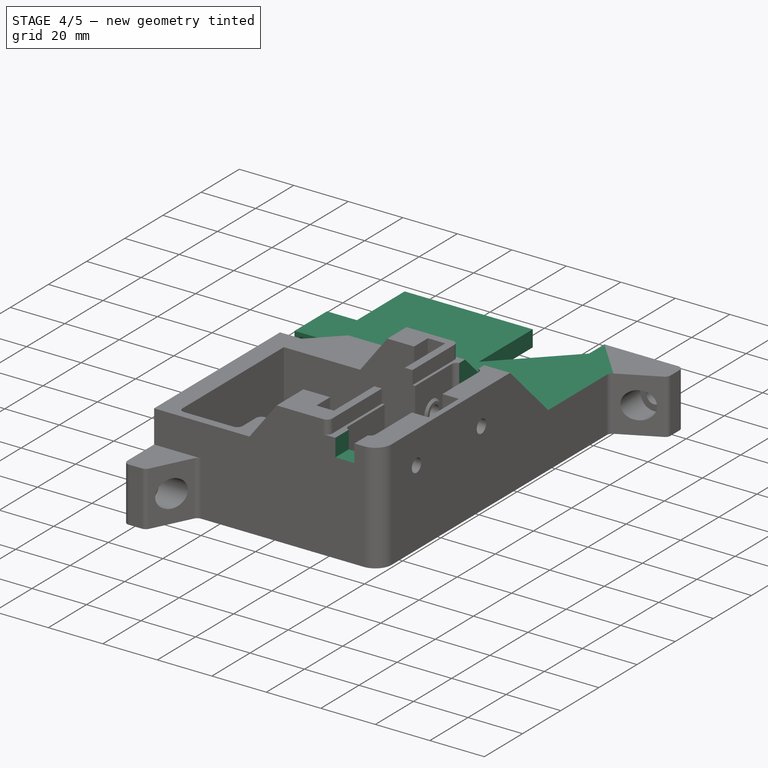
[diagram: stage 4 of 5 — iso view after this stage's code; geometry added in this stage tinted green]
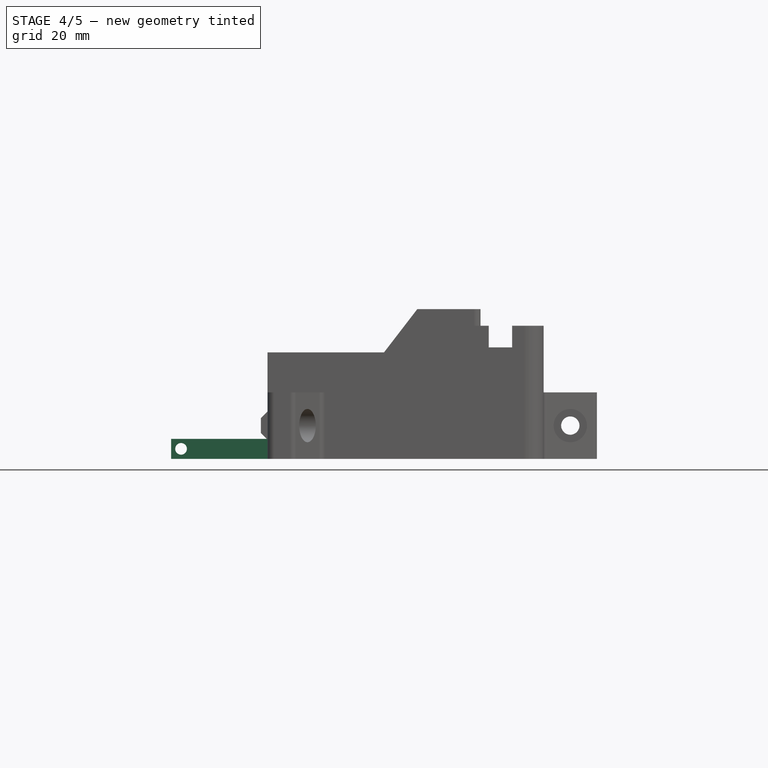
[diagram: stage 4 of 5 — front view after this stage's code; geometry added in this stage tinted green]
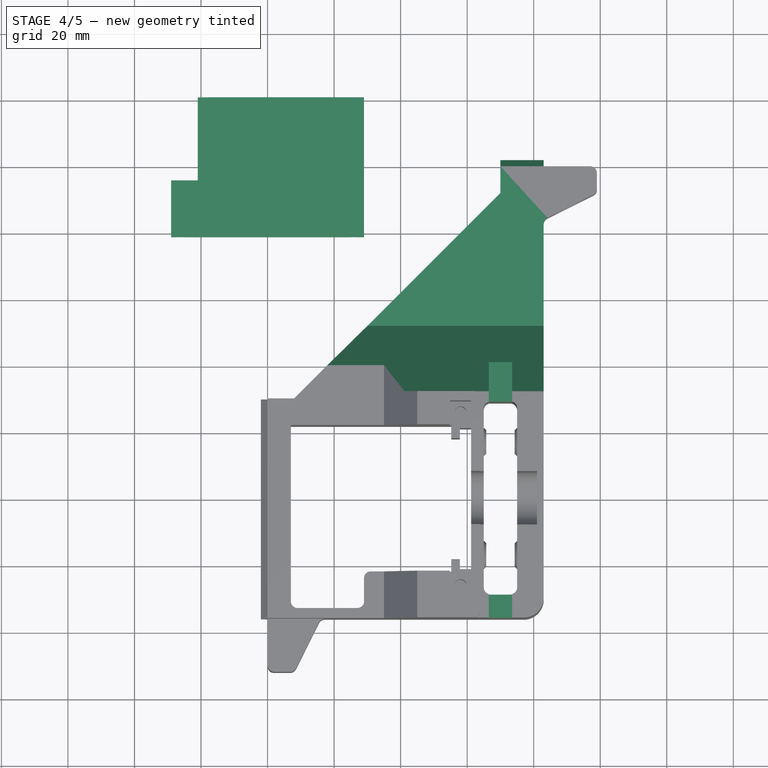
[diagram: stage 4 of 5 — top view after this stage's code; geometry added in this stage tinted green]
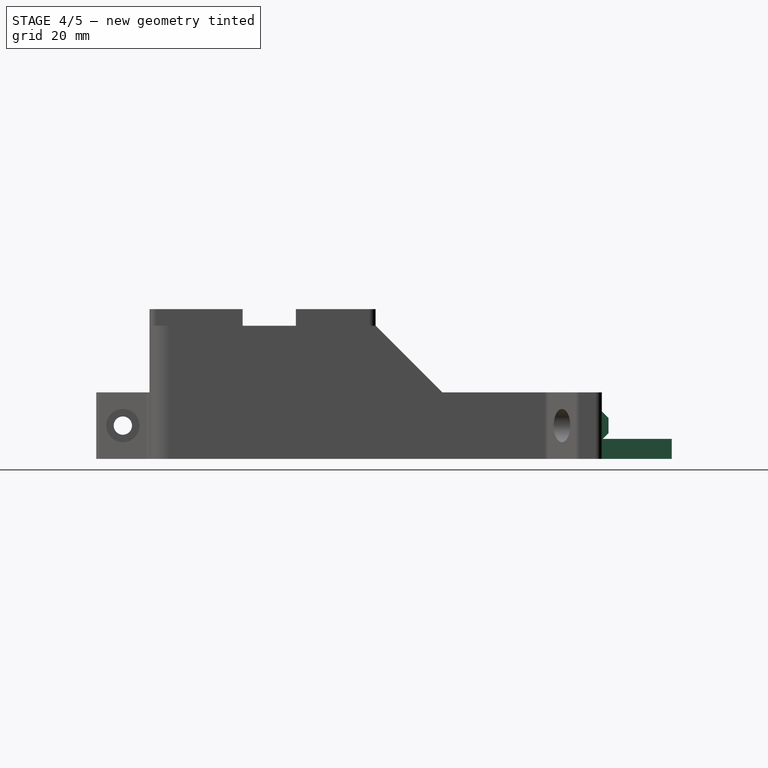
[diagram: stage 4 of 5 — right view after this stage's code; geometry added in this stage tinted green]
FEATURE [Sketcher::SketchObject] Sketch170
  ArcFitTolerance = 0
  AttachmentSupport = -> [XZ_Plane245]
  FullyConstrained = true
  MakeInternals = false
  MapMode = 5
  Placement = pos=(0,0,0) rot=(1,0,0;1.5708rad)
  sketch-geometry (10):
    g0: LineSegment StartX=0 StartY=32 StartZ=0 EndX=35 EndY=32 EndZ=0
    g1: LineSegment StartX=35 StartY=32 StartZ=0 EndX=45 EndY=45 EndZ=0
    g2: LineSegment StartX=99 StartY=20 StartZ=0 EndX=83 EndY=20 EndZ=0
    g3: LineSegment StartX=83 StartY=20 StartZ=0 EndX=83 EndY=45 EndZ=0
    g4: LineSegment StartX=99 StartY=50 StartZ=0 EndX=99 EndY=20 EndZ=0
    g5: Circle CenterX=91 CenterY=10 CenterZ=0 NormalX=0 NormalY=0 NormalZ=1 AngleXU=0 Radius=2.75
    g6: GeomPoint [constr] X=99 Y=0 Z=0
    g7: LineSegment StartX=45 StartY=45 StartZ=0 EndX=83 EndY=45 EndZ=0
    g8: LineSegment StartX=99 StartY=50 StartZ=0 EndX=0 EndY=50 EndZ=0
    g9: LineSegment StartX=0 StartY=50 StartZ=0 EndX=0 EndY=32 EndZ=0
  constraints (28):
    c: Horizontal(g0)
    c: Coincident(g1,g0)
    c: DistanceX(g1) = 45
    c: DistanceX(g1,g1) = 10
    c: Coincident(g2,g3)
    c: Coincident(g4,g2)
    c: Horizontal(g2)
    c: Vertical(g3)
    c: Vertical(g4)
    c: DistanceY(g2) = 20
    c: DistanceX(g2,g2) = 16
    c: DistanceY(g3,g3) = 25
    c: DistanceX(g2) = 83
    c: PointOnObject(g6,g-1)
    c: PointOnObject(g6,g4)
    c: Symmetric(g6,g2,g5)
    c: Diameter(g5) = 5.5
    c: Coincident(g7,g1)
    c: Coincident(g7,g3)
    c: Horizontal(g7)
    c: Coincident(g8,g4)
    c: Horizontal(g8)
    c: Vertical(g9)
    c: Coincident(g0,g9)
    c: Coincident(g8,g9)
    c: DistanceY(g8) = 50
    c: DistanceY(g0) = 32
    c: PointOnObject(g8,g-2)
FEATURE [Sketcher::SketchObject] Sketch171
  ArcFitTolerance = 0
  AttachmentSupport = -> [YZ_Plane245]
  FullyConstrained = true
  MakeInternals = false
  MapMode = 5
  Placement = pos=(0,0,0) rot=(0.57735,0.57735,0.57735;2.0944rad)
  sketch-geometry (6):
    g0: LineSegment StartX=-152 StartY=32 StartZ=0 EndX=-136 EndY=32 EndZ=0
    g1: LineSegment StartX=-136 StartY=32 StartZ=0 EndX=-136 EndY=20 EndZ=0
    g2: LineSegment StartX=-136 StartY=20 StartZ=0 EndX=-152 EndY=20 EndZ=0
    g3: LineSegment StartX=-152 StartY=20 StartZ=0 EndX=-152 EndY=32 EndZ=0
    g4: GeomPoint [constr] X=-136 Y=0 Z=0
    g5: Circle CenterX=-144 CenterY=10 CenterZ=0 NormalX=0 NormalY=0 NormalZ=1 AngleXU=0 Radius=2.75
  constraints (16):
    c: Coincident(g0,g1)
    c: Coincident(g1,g2)
    c: Coincident(g2,g3)
    c: Coincident(g3,g0)
    c: Horizontal(g0)
    c: Horizontal(g2)
    c: Vertical(g3)
    c: DistanceX(g1) = -136
    c: DistanceX(g2,g2) = 16
    c: DistanceY(g1,g1) = 12
    c: DistanceY(g1) = 20
    c: Vertical(g1)
    c: PointOnObject(g4,g-1)
    c: PointOnObject(g4,g1)
    c: Symmetric(g2,g4,g5)
    c: Diameter(g5) = 5.5
FEATURE [Sketcher::SketchObject] Sketch172
  ArcFitTolerance = 0
  AttachmentOffset = pos=(0,0,70) rot=(0,0,1;0rad)
  AttachmentSupport = -> [YZ_Plane245]
  FullyConstrained = true
  MakeInternals = false
  MapMode = 5
  Placement = pos=(70,0,0) rot=(0.57735,0.57735,0.57735;2.0944rad)
  sketch-geometry (4):
    g0: ArcOfCircle CenterX=7 CenterY=35 CenterZ=0 NormalX=0 NormalY=0 NormalZ=1 AngleXU=0 Radius=14 StartAngle=3.14159 EndAngle=6.28319
    g1: LineSegment StartX=-7 StartY=35 StartZ=0 EndX=-7 EndY=45 EndZ=0
    g2: LineSegment StartX=-7 StartY=45 StartZ=0 EndX=21 EndY=45 EndZ=0
    g3: LineSegment StartX=21 StartY=45 StartZ=0 EndX=21 EndY=35 EndZ=0
  constraints (11):
    c: DistanceX(g0) = 7
    c: DistanceY(g0) = 35
    c: Diameter(g0) = 28
    c: Vertical(g1)
    c: Coincident(g2,g1)
    c: Horizontal(g2)
    c: Coincident(g3,g2)
    c: Tangent(g0,g3) = 1.5708
    c: Tangent(g0,g1) = 1.5708
    c: Vertical(g3)
    c: DistanceY(g1) = 45
FEATURE [Sketcher::SketchObject] Sketch173
  ArcFitTolerance = 0
  AttachmentOffset = pos=(0,0,70) rot=(0,0,1;0rad)
  AttachmentSupport = -> [YZ_Plane245]
  FullyConstrained = true
  MakeInternals = false
  MapMode = 5
  Placement = pos=(70,0,0) rot=(0.57735,0.57735,0.57735;2.0944rad)
  sketch-geometry (11):
    g0: LineSegment StartX=-136 StartY=45 StartZ=0 EndX=-125 EndY=45 EndZ=0
    g1: LineSegment StartX=-125 StartY=45 StartZ=0 EndX=-125 EndY=33.5 EndZ=0
    g2: LineSegment StartX=-125 StartY=33.5 StartZ=0 EndX=-136 EndY=33.5 EndZ=0
    g3: LineSegment StartX=-136 StartY=33.5 StartZ=0 EndX=-136 EndY=45 EndZ=0
    g4: LineSegment StartX=0 StartY=24 StartZ=0 EndX=0 EndY=45 EndZ=0
    g5: LineSegment StartX=0 StartY=45 StartZ=0 EndX=-75 EndY=45 EndZ=0
    g6: LineSegment StartX=-75 StartY=45 StartZ=0 EndX=-75 EndY=33 EndZ=0
    g7: LineSegment StartX=-75 StartY=33 StartZ=0 EndX=0 EndY=24 EndZ=0
    g8: GeomPoint [constr] X=-130.5 Y=36.5 Z=0
    g9: GeomPoint [constr] X=-125 Y=36.5 Z=0
    g10: GeomPoint [constr] X=-136 Y=36.5 Z=0
  constraints (29):
    c: Coincident(g0,g1)
    c: Coincident(g1,g2)
    c: Coincident(g2,g3)
    c: Coincident(g3,g0)
    c: Horizontal(g0)
    c: Horizontal(g2)
    c: Vertical(g1)
    c: Vertical(g3)
    c: PointOnObject(g4,g-2)
    c: PointOnObject(g4,g-2)
    c: Coincident(g5,g4)
    c: Coincident(g6,g5)
    c: Vertical(g6)
    c: Coincident(g7,g4)
    c: Coincident(g7,g6)
    c: DistanceX(g6) = -75
    c: DistanceX(g0,g0) = 11
    c: DistanceY(g8) = 36.5
    c: DistanceY(g6) = 33
    c: DistanceY(g4) = 24
    c: DistanceX(g2) = -136
    c: DistanceY(g2,g8) = 3
    c: PointOnObject(g9,g1)
    c: PointOnObject(g10,g3)
    c: Horizontal(g9,g10)
    c: Symmetric(g10,g9,g8)
    c: DistanceY(g0) = 45
    c: Horizontal(g5)
    c: DistanceY(g4) = 45
FEATURE [Sketcher::SketchObject] Sketch174
  ArcFitTolerance = 0
  AttachmentOffset = pos=(0,0,20) rot=(0,0,1;0rad)
  AttachmentSupport = -> [XY_Plane245]
  FullyConstrained = true
  MakeInternals = false
  MapMode = 5
  Placement = pos=(0,0,20) rot=(0,0,1;0rad)
  sketch-geometry (14):
    g0: GeomPoint [constr] X=50 Y=0 Z=0
    g1: LineSegment [constr] StartX=39.8 StartY=0 StartZ=0 EndX=60.2 EndY=0 EndZ=0
    g2: LineSegment [constr] StartX=60.2 StartY=0 StartZ=0 EndX=60.2 EndY=-18.2 EndZ=0
    g3: LineSegment StartX=58.2 StartY=-20.2 StartZ=0 EndX=41.8 EndY=-20.2 EndZ=0
    g4: LineSegment [constr] StartX=39.8 StartY=-18.2 StartZ=0 EndX=39.8 EndY=0 EndZ=0
    g5: ArcOfCircle CenterX=41.8 CenterY=-18.2 CenterZ=0 NormalX=0 NormalY=0 NormalZ=1 AngleXU=0 Radius=2 StartAngle=3.14159 EndAngle=4.71239
    g6: GeomPoint [constr] X=39.8 Y=-20.2 Z=0
    g7: ArcOfCircle CenterX=58.2 CenterY=-18.2 CenterZ=0 NormalX=0 NormalY=0 NormalZ=1 AngleXU=0 Radius=2 StartAngle=4.71239 EndAngle=6.28319
    g8: GeomPoint [constr] X=60.2 Y=-20.2 Z=0
    g9: ArcOfCircle CenterX=62.2 CenterY=-2 CenterZ=0 NormalX=0 NormalY=0 NormalZ=1 AngleXU=0 Radius=2 StartAngle=1.5708 EndAngle=3.14159
    g10: ArcOfCircle CenterX=37.8 CenterY=-2 CenterZ=0 NormalX=0 NormalY=0 NormalZ=1 AngleXU=0 Radius=2 StartAngle=0 EndAngle=1.5708
    g11: LineSegment StartX=39.8 StartY=-2 StartZ=0 EndX=39.8 EndY=-18.2 EndZ=0
    g12: LineSegment StartX=60.2 StartY=-18.2 StartZ=0 EndX=60.2 EndY=-2 EndZ=0
    g13: LineSegment StartX=62.2 StartY=-4e-16 StartZ=0 EndX=37.8 EndY=-4e-16 EndZ=0
  constraints (34):
    c: PointOnObject(g0,g-1)
    c: DistanceX(g0) = 50
    c: Coincident(g1,g2)
    c: Coincident(g4,g1)
    c: Horizontal(g1)
    c: Horizontal(g3)
    c: Vertical(g2)
    c: Vertical(g4)
    c: DistanceY(g8,g2) = 20.2
    c: DistanceX(g1,g1) = 20.4
    c: Symmetric(g1,g1,g0)
    c: PointOnObject(g6,g3)
    c: PointOnObject(g6,g4)
    c: Tangent(g3,g5) = 1.5708
    c: Tangent(g4,g5) = 1.5708
    c: PointOnObject(g8,g2)
    c: PointOnObject(g8,g3)
    c: Tangent(g2,g7) = 1.5708
    c: Tangent(g3,g7) = 1.5708
    c: Equal(g5,g7)
    c: Radius(g5) = 2
    c: PointOnObject(g9,g2)
    c: PointOnObject(g10,g4)
    c: PointOnObject(g10,g-1)
    c: Coincident(g11,g5)
    c: Coincident(g13,g9)
    c: Horizontal(g13)
    c: Tangent(g13,g9)
    c: Equal(g9,g10)
    c: Equal(g10,g5)
    c: Tangent(g11,g10) = 1.5708
    c: Tangent(g12,g9) = 1.5708
    c: Tangent(g13,g10) = -1.5708
    c: Coincident(g7,g12)
FEATURE [Sketcher::SketchObject] Sketch175
  ArcFitTolerance = 0
  AttachmentOffset = pos=(0,0,40) rot=(0,0,1;0rad)
  AttachmentSupport = -> [XY_Plane245]
  FullyConstrained = true
  MakeInternals = false
  MapMode = 5
  Placement = pos=(0,0,40) rot=(0,0,1;0rad)
  sketch-geometry (12):
    g0: LineSegment StartX=83 StartY=0 StartZ=0 EndX=83 EndY=-136 EndZ=0
    g1: LineSegment [constr] StartX=64 StartY=-70 StartZ=0 EndX=64 EndY=-136 EndZ=0
    g2: LineSegment [constr] StartX=64 StartY=-136 StartZ=0 EndX=83 EndY=-136 EndZ=0
    g3: LineSegment StartX=62 StartY=-68 StartZ=0 EndX=20 EndY=-68 EndZ=0
    g4: GeomPoint [constr] X=70 Y=-136 Z=0
    g5: ArcOfCircle CenterX=62 CenterY=-70 CenterZ=0 NormalX=0 NormalY=0 NormalZ=1 AngleXU=0 Radius=2 StartAngle=0 EndAngle=1.5708
    g6: GeomPoint [constr] X=64 Y=-68 Z=0
    g7: ArcOfCircle CenterX=62 CenterY=-134 CenterZ=0 NormalX=0 NormalY=0 NormalZ=1 AngleXU=0 Radius=2 StartAngle=4.71238 EndAngle=6.28319
    g8: LineSegment StartX=62 StartY=-136 StartZ=0 EndX=83 EndY=-136 EndZ=0
    g9: LineSegment StartX=64 StartY=-134 StartZ=0 EndX=64 EndY=-70 EndZ=0
    g10: LineSegment StartX=83 StartY=0 StartZ=0 EndX=20 EndY=0 EndZ=0
    g11: LineSegment StartX=20 StartY=0 StartZ=0 EndX=20 EndY=-68 EndZ=0
  constraints (32):
    c: Vertical(g0)
    c: Vertical(g1)
    c: Coincident(g2,g1)
    c: Horizontal(g2)
    c: DistanceY(g2) = -136
    c: Horizontal(g3)
    c: DistanceY(g6) = -68
    c: Coincident(g0,g2)
    c: PointOnObject(g4,g2)
    c: DistanceX(g4) = 70
    c: DistanceX(g1,g4) = 6
    c: PointOnObject(g6,g1)
    c: PointOnObject(g6,g3)
    c: Tangent(g1,g5) = 1.5708
    c: Tangent(g3,g5) = -1.5708
    c: Radius(g5) = 2
    c: PointOnObject(g7,g1)
    c: Coincident(g8,g7)
    c: Coincident(g8,g0)
    c: Horizontal(g8)
    c: Tangent(g8,g7)
    c: Coincident(g9,g5)
    c: Tangent(g9,g7) = -1.5708
    c: Equal(g7,g5)
    c: Coincident(g10,g0)
    c: PointOnObject(g10,g-1)
    c: Horizontal(g10)
    c: Coincident(g11,g10)
    c: Coincident(g11,g3)
    c: Vertical(g11)
    c: DistanceX(g3) = 20
    c: DistanceX(g0) = 83
FEATURE [Sketcher::SketchObject] Sketch176
  ArcFitTolerance = 0
  AttachmentSupport = -> [YZ_Plane245]
  FullyConstrained = true
  MakeInternals = false
  MapMode = 5
  Placement = pos=(0,0,0) rot=(0.57735,0.57735,0.57735;2.0944rad)
  sketch-geometry (1):
    g0: Circle CenterX=7 CenterY=35 CenterZ=0 NormalX=0 NormalY=0 NormalZ=1 AngleXU=0 Radius=10
  constraints (3):
    c: Diameter(g0) = 20
    c: DistanceX(g0) = 7
    c: DistanceY(g0) = 35
FEATURE [Sketcher::SketchObject] Sketch177
  ArcFitTolerance = 0
  AttachmentOffset = pos=(0,0,8.3) rot=(0,0,1;0rad)
  AttachmentSupport = -> [XY_Plane245]
  FullyConstrained = true
  MakeInternals = false
  MapMode = 5
  Placement = pos=(0,0,8.3) rot=(0,0,1;0rad)
  sketch-geometry (1):
    g0: Circle CenterX=50 CenterY=-10 CenterZ=0 NormalX=0 NormalY=0 NormalZ=1 AngleXU=0 Radius=2.75
  constraints (3):
    c: DistanceX(g0) = 50
    c: DistanceY(g0) = -10
    c: Diameter(g0) = 5.5
FEATURE [Sketcher::SketchObject] Sketch178
  ArcFitTolerance = 0
  AttachmentSupport = -> [XY_Plane245]
  FullyConstrained = true
  MakeInternals = false
  MapMode = 5
  sketch-geometry (7):
    g0: LineSegment StartX=52.3094 StartY=-14 StartZ=0 EndX=54.6188 EndY=-10 EndZ=0
    g1: LineSegment StartX=54.6188 StartY=-10 StartZ=0 EndX=52.3094 EndY=-6 EndZ=0
    g2: LineSegment StartX=52.3094 StartY=-6 StartZ=0 EndX=47.6906 EndY=-6 EndZ=0
    g3: LineSegment StartX=47.6906 StartY=-6 StartZ=0 EndX=45.3812 EndY=-10 EndZ=0
    g4: LineSegment StartX=45.3812 StartY=-10 StartZ=0 EndX=47.6906 EndY=-14 EndZ=0
    g5: LineSegment StartX=47.6906 StartY=-14 StartZ=0 EndX=52.3094 EndY=-14 EndZ=0
    g6: Circle [constr] CenterX=50 CenterY=-10 CenterZ=0 NormalX=0 NormalY=0 NormalZ=1 AngleXU=0 Radius=4.6188
  constraints (17):
    c: Coincident(g0,g1)
    c: Coincident(g1,g2)
    c: Coincident(g2,g3)
    c: Coincident(g3,g4)
    c: Coincident(g4,g5)
    c: Coincident(g5,g0)
    c: Equal(g0, g1-g5) x5
    c: PointOnObject(g0,g6)
    c: PointOnObject(g1,g6)
    c: PointOnObject(g2,g6)
    c: PointOnObject(g3,g6)
    c: PointOnObject(g4,g6)
    c: PointOnObject(g5,g6)
    c: Horizontal(g2)
    c: DistanceY(g0,g1) = 8
    c: DistanceX(g6) = 50
    c: DistanceY(g6) = -10
FEATURE [Sketcher::SketchObject] Sketch185
  ArcFitTolerance = 0
  AttachmentOffset = pos=(0,0,62) rot=(0,0,1;0rad)
  AttachmentSupport = -> [YZ_Plane245]
  FullyConstrained = true
  MakeInternals = false
  MapMode = 5
  Placement = pos=(62,0,0) rot=(0.57735,0.57735,0.57735;2.0944rad)
  sketch-geometry (6):
    g0: Circle CenterX=-83 CenterY=28 CenterZ=0 NormalX=0 NormalY=0 NormalZ=1 AngleXU=0 Radius=2.45
    g1: Circle CenterX=-117 CenterY=28 CenterZ=0 NormalX=0 NormalY=0 NormalZ=1 AngleXU=0 Radius=2.45
    g2: GeomPoint [constr] X=-100 Y=28 Z=0
    g3: Circle [constr] CenterX=-117 CenterY=28 CenterZ=0 NormalX=0 NormalY=0 NormalZ=1 AngleXU=0 Radius=9
    g4: Circle [constr] CenterX=-100 CenterY=28 CenterZ=0 NormalX=0 NormalY=0 NormalZ=1 AngleXU=0 Radius=7
    g5: Circle [constr] CenterX=-83 CenterY=28 CenterZ=0 NormalX=0 NormalY=0 NormalZ=1 AngleXU=0 Radius=9
  constraints (13):
    c: Symmetric(g0,g1,g2)
    c: Horizontal(g0,g1)
    c: Diameter(g0) = 4.9
    c: DistanceY(g1) = 28
    c: DistanceX(g1,g0) = 34
    c: DistanceX(g2) = -100
    c: Equal(g1,g0)
    c: Coincident(g3,g1)
    c: Coincident(g5,g0)
    c: Equal(g5,g3)
    c: Diameter(g3) = 18
    c: Diameter(g4) = 14
    c: Coincident(g4,g2)
FEATURE [Sketcher::SketchObject] Sketch186
  ArcFitTolerance = 0
  AttachmentSupport = -> [XY_Plane245]
  FullyConstrained = true
  MakeInternals = false
  MapMode = 5
  sketch-geometry (35):
    g0: LineSegment StartX=7 StartY=-78 StartZ=0 EndX=55.2 EndY=-78 EndZ=0
    g1: LineSegment [constr] StartX=55.2 StartY=-122 StartZ=0 EndX=7 EndY=-122 EndZ=0
    g2: LineSegment StartX=7 StartY=-122 StartZ=0 EndX=7 EndY=-78 EndZ=0
    g3: GeomPoint [constr] X=55 Y=-100 Z=0
    g4: LineSegment [constr] StartX=55 StartY=-100 StartZ=0 EndX=0 EndY=-100 EndZ=0
    g5: LineSegment StartX=55.2 StartY=-78 StartZ=0 EndX=55.2 EndY=-81.8 EndZ=0
    g6: LineSegment StartX=55.2 StartY=-81.8 StartZ=0 EndX=57.8 EndY=-81.8 EndZ=0
    g7: LineSegment StartX=57.8 StartY=-81.8 StartZ=0 EndX=57.8 EndY=-78.8 EndZ=0
    g8: LineSegment StartX=57.8 StartY=-78.8 StartZ=0 EndX=61.2 EndY=-78.8 EndZ=0
    g9: LineSegment StartX=61.2 StartY=-78.8 StartZ=0 EndX=61.2 EndY=-121.2 EndZ=0
    g10: LineSegment StartX=61.2 StartY=-121.2 StartZ=0 EndX=57.8 EndY=-121.2 EndZ=0
    g11: LineSegment StartX=57.8 StartY=-121.2 StartZ=0 EndX=57.8 EndY=-118.2 EndZ=0
    g12: LineSegment StartX=57.8 StartY=-118.2 StartZ=0 EndX=55.2 EndY=-118.2 EndZ=0
    g13: LineSegment StartX=55.2 StartY=-118.2 StartZ=0 EndX=55.2 EndY=-122 EndZ=0
    g14: GeomPoint [constr] X=58 Y=-100 Z=0
    g15: GeomPoint [constr] X=55 Y=-79 Z=0
    g16: LineSegment [constr] StartX=55 StartY=-82 StartZ=0 EndX=58 EndY=-82 EndZ=0
    g17: LineSegment [constr] StartX=58 StartY=-82 StartZ=0 EndX=58 EndY=-79 EndZ=0
    g18: LineSegment [constr] StartX=58 StartY=-79 StartZ=0 EndX=61 EndY=-79 EndZ=0
    g19: LineSegment [constr] StartX=61 StartY=-79 StartZ=0 EndX=61 EndY=-121 EndZ=0
    g20: LineSegment [constr] StartX=61 StartY=-121 StartZ=0 EndX=58 EndY=-121 EndZ=0
    g21: LineSegment [constr] StartX=58 StartY=-121 StartZ=0 EndX=58 EndY=-118 EndZ=0
    g22: LineSegment [constr] StartX=58 StartY=-118 StartZ=0 EndX=55 EndY=-118 EndZ=0
    g23: LineSegment [constr] StartX=55 StartY=-118 StartZ=0 EndX=55 EndY=-82 EndZ=0
    g24: LineSegment StartX=55.2 StartY=-122 StartZ=0 EndX=31 EndY=-122 EndZ=0
    g25: LineSegment StartX=29 StartY=-124 StartZ=0 EndX=29 EndY=-131 EndZ=0
    g26: LineSegment StartX=27 StartY=-133 StartZ=0 EndX=9 EndY=-133 EndZ=0
    g27: LineSegment StartX=7 StartY=-131 StartZ=0 EndX=7 EndY=-122 EndZ=0
    g28: ArcOfCircle CenterX=9 CenterY=-131 CenterZ=0 NormalX=0 NormalY=0 NormalZ=1 AngleXU=0 Radius=2 StartAngle=3.14159 EndAngle=4.71239
    g29: GeomPoint [constr] X=7 Y=-133 Z=0
    g30: ArcOfCircle CenterX=27 CenterY=-131 CenterZ=0 NormalX=0 NormalY=0 NormalZ=1 AngleXU=0 Radius=2 StartAngle=4.71239 EndAngle=6.28319
    g31: GeomPoint [constr] X=29 Y=-133 Z=0
    g32: ArcOfCircle CenterX=31 CenterY=-124 CenterZ=0 NormalX=0 NormalY=0 NormalZ=1 AngleXU=0 Radius=2 StartAngle=1.5708 EndAngle=3.14159
    g33: GeomPoint [constr] X=29 Y=-122 Z=0
    g34: GeomPoint [constr] X=0 Y=-136 Z=0
  constraints (90):
    c: Coincident(g1,g2)
    c: Coincident(g2,g0)
    c: Horizontal(g0)
    c: Horizontal(g1)
    c: Vertical(g2)
    c: DistanceY(g2,g2) = 44
    c: DistanceX(g3) = 55
    c: DistanceY(g3) = -100
    c: Coincident(g4,g3)
    c: PointOnObject(g4,g-2)
    c: Horizontal(g4)
    c: Symmetric(g1,g0,g4)
    c: DistanceX(g1,g3) = 48
    c: Coincident(g5,g0)
    c: Vertical(g5)
    c: Coincident(g6,g5)
    c: Horizontal(g6)
    c: Coincident(g7,g6)
    c: Vertical(g7)
    c: Coincident(g8,g7)
    c: Horizontal(g8)
    c: Coincident(g9,g8)
    c: Coincident(g10,g9)
    c: Horizontal(g10)
    c: Coincident(g11,g10)
    c: Vertical(g11)
    c: Coincident(g12,g11)
    c: Horizontal(g12)
    c: Coincident(g13,g12)
    c: Coincident(g13,g1)
    c: Vertical(g13)
    c: Symmetric(g6,g11,g4)
    c: PointOnObject(g14,g4)
    c: DistanceX(g3,g14) = 3
    c: DistanceX(g6,g14) = 0.2
    c: Vertical(g15,g3)
    c: DistanceY(g3,g15) = 21
    c: DistanceY(g5,g15) = 2.8
    c: DistanceX(g15,g0) = 0.2
    c: DistanceY(g15,g7) = 0.2
    c: DistanceX(g8,g8) = 3.4
    c: Horizontal(g16)
    c: Coincident(g17,g16)
    c: Vertical(g17)
    c: Coincident(g18,g17)
    c: Horizontal(g18)
    c: Coincident(g19,g18)
    c: Coincident(g20,g19)
    c: Horizontal(g20)
    c: Coincident(g21,g20)
    c: Vertical(g21)
    c: Coincident(g22,g21)
    c: Horizontal(g22)
    c: Coincident(g23,g22)
    c: Coincident(g23,g16)
    c: Vertical(g23)
    c: PointOnObject(g3,g23)
    c: DistanceY(g16,g15) = 3
    c: DistanceX(g6,g16) = 0.2
    c: Horizontal(g17,g15)
    c: DistanceX(g18,g8) = 0.2
    c: Symmetric(g19,g18,g4)
    c: Symmetric(g9,g8,g4)
    c: Symmetric(g21,g16,g4)
    c: Coincident(g13,g24)
    c: PointOnObject(g33,g1)
    c: Vertical(g25)
    c: Horizontal(g26)
    c: Coincident(g27,g2)
    c: Vertical(g27)
    c: DistanceY(g31,g33) = 11
    c: DistanceX(g29,g31) = 22
    c: PointOnObject(g29,g26)
    c: PointOnObject(g29,g27)
    c: Tangent(g26,g28) = 1.5708
    c: Tangent(g27,g28) = 1.5708
    c: PointOnObject(g31,g25)
    c: PointOnObject(g31,g26)
    c: Tangent(g25,g30) = 1.5708
    c: Tangent(g26,g30) = 1.5708
    c: PointOnObject(g33,g24)
    c: PointOnObject(g33,g25)
    c: Tangent(g24,g32) = -1.5708
    c: Tangent(g25,g32) = -1.5708
    c: Equal(g32,g30)
    c: Equal(g30,g28)
    c: Radius(g32) = 2
    c: PointOnObject(g34,g-2)
    c: DistanceY(g34) = -136
    c: DistanceY(g34,g26) = 3
FEATURE [Sketcher::SketchObject] Sketch187
  ArcFitTolerance = 0
  AttachmentOffset = pos=(0,0,25) rot=(0,0,1;0rad)
  AttachmentSupport = -> [XY_Plane245]
  FullyConstrained = true
  MakeInternals = false
  MapMode = 5
  Placement = pos=(0,0,25) rot=(0,0,1;0rad)
  sketch-geometry (6):
    g0: LineSegment StartX=54.8 StartY=-70.8 StartZ=0 EndX=54.8 EndY=-129.2 EndZ=0
    g1: LineSegment StartX=54.8 StartY=-70.8 StartZ=0 EndX=61.2 EndY=-70.8 EndZ=0
    g2: LineSegment StartX=54.8 StartY=-129.2 StartZ=0 EndX=61.2 EndY=-129.2 EndZ=0
    g3: LineSegment StartX=61.2 StartY=-129.2 StartZ=0 EndX=61.2 EndY=-70.8 EndZ=0
    g4: GeomPoint [constr] X=54.8 Y=-100 Z=0
    g5: GeomPoint [constr] X=54.8 Y=-79 Z=0
  constraints (15):
    c: Vertical(g0)
    c: Coincident(g1,g0)
    c: Coincident(g2,g0)
    c: Coincident(g3,g2)
    c: Coincident(g3,g1)
    c: Vertical(g3)
    c: Symmetric(g0,g0,g4)
    c: DistanceY(g4) = -100
    c: DistanceX(g4) = 54.8
    c: DistanceX(g0,g1) = 6.4
    c: Horizontal(g1)
    c: Horizontal(g2)
    c: PointOnObject(g5,g0)
    c: DistanceY(g4,g5) = 21
    c: DistanceY(g5,g0) = 8.2
FEATURE [Sketcher::SketchObject] Sketch188
  ArcFitTolerance = 0
  AttachmentOffset = pos=(0,0,40) rot=(0,0,1;0rad)
  AttachmentSupport = -> [YZ_Plane245]
  FullyConstrained = true
  MakeInternals = false
  MapMode = 5
  Placement = pos=(40,0,0) rot=(0.57735,0.57735,0.57735;2.0944rad)
  sketch-geometry (4):
    g0: LineSegment StartX=0 StartY=32 StartZ=0 EndX=-20.2 EndY=32 EndZ=0
    g1: LineSegment StartX=-20.2 StartY=32 StartZ=0 EndX=-20.2 EndY=45 EndZ=0
    g2: LineSegment StartX=-20.2 StartY=45 StartZ=0 EndX=0 EndY=45 EndZ=0
    g3: LineSegment StartX=0 StartY=45 StartZ=0 EndX=0 EndY=32 EndZ=0
  constraints (12):
    c: Coincident(g0,g1)
    c: Coincident(g1,g2)
    c: Coincident(g2,g3)
    c: Coincident(g3,g0)
    c: Horizontal(g0)
    c: Horizontal(g2)
    c: Vertical(g1)
    c: Vertical(g3)
    c: PointOnObject(g0,g-2)
    c: DistanceY(g2) = 45
    c: DistanceX(g2,g2) = 20.2
    c: DistanceY(g3,g3) = 13
FEATURE [Sketcher::SketchObject] Sketch189
  ArcFitTolerance = 0
  AttachmentOffset = pos=(0,0,15.4) rot=(0,0,1;0rad)
  AttachmentSupport = -> [XY_Plane245]
  FullyConstrained = true
  MakeInternals = false
  MapMode = 5
  Placement = pos=(0,0,15.4) rot=(0,0,1;0rad)
  sketch-geometry (5):
    g0: Circle CenterX=58 CenterY=-74 CenterZ=0 NormalX=0 NormalY=0 NormalZ=1 AngleXU=0 Radius=1.75
    g1: Circle CenterX=58 CenterY=-126 CenterZ=0 NormalX=0 NormalY=0 NormalZ=1 AngleXU=0 Radius=1.75
    g2: GeomPoint [constr] X=58 Y=-100 Z=0
    g3: GeomPoint [constr] X=55 Y=-100 Z=0
    g4: GeomPoint [constr] X=58 Y=-79 Z=0
  constraints (11):
    c: Symmetric(g1,g0,g2)
    c: Vertical(g1,g0)
    c: Diameter(g0) = 3.5
    c: Horizontal(g2,g3)
    c: DistanceX(g3,g2) = 3
    c: DistanceX(g3) = 55
    c: DistanceY(g2,g4) = 21
    c: DistanceY(g4,g0) = 5
    c: DistanceY(g2) = -100
    c: Equal(g1,g0)
    c: Vertical(g4,g0)
FEATURE [Sketcher::SketchObject] Sketch190
  ArcFitTolerance = 0
  AttachmentOffset = pos=(0,0,15) rot=(0,0,1;0rad)
  AttachmentSupport = -> [XY_Plane245]
  FullyConstrained = true
  MakeInternals = false
  MapMode = 5
  Placement = pos=(0,0,15) rot=(0,0,1;0rad)
  sketch-geometry (30):
    g0: LineSegment [constr] StartX=61.06 StartY=-74 StartZ=0 EndX=59.53 EndY=-71.35 EndZ=0
    g1: LineSegment [constr] StartX=59.53 StartY=-71.35 StartZ=0 EndX=56.47 EndY=-71.35 EndZ=0
    g2: LineSegment [constr] StartX=56.47 StartY=-71.35 StartZ=0 EndX=54.94 EndY=-74 EndZ=0
    g3: LineSegment [constr] StartX=54.94 StartY=-74 StartZ=0 EndX=56.47 EndY=-76.65 EndZ=0
    g4: LineSegment [constr] StartX=56.47 StartY=-76.65 StartZ=0 EndX=59.53 EndY=-76.65 EndZ=0
    g5: LineSegment [constr] StartX=59.53 StartY=-76.65 StartZ=0 EndX=61.06 EndY=-74 EndZ=0
    g6: Circle [constr] CenterX=58 CenterY=-74 CenterZ=0 NormalX=0 NormalY=0 NormalZ=1 AngleXU=0 Radius=3.05996
    g7: GeomPoint [constr] X=58 Y=-100 Z=0
    g8: GeomPoint [constr] X=58 Y=-79 Z=0
    g9: ArcOfCircle CenterX=56.6144 CenterY=-71.6 CenterZ=0 NormalX=0 NormalY=0 NormalZ=1 AngleXU=0 Radius=0.5 StartAngle=0.523599 EndAngle=3.66519
    g10: ArcOfCircle CenterX=59.3856 CenterY=-71.6 CenterZ=0 NormalX=0 NormalY=0 NormalZ=1 AngleXU=0 Radius=0.5 StartAngle=5.75959 EndAngle=8.90118
    g11: ArcOfCircle CenterX=60.7713 CenterY=-74 CenterZ=0 NormalX=0 NormalY=0 NormalZ=1 AngleXU=0 Radius=0.5 StartAngle=4.71239 EndAngle=7.85398
    g12: ArcOfCircle CenterX=59.3856 CenterY=-76.4 CenterZ=0 NormalX=0 NormalY=0 NormalZ=1 AngleXU=0 Radius=0.5 StartAngle=3.66519 EndAngle=6.80678
    g13: ArcOfCircle CenterX=56.6144 CenterY=-76.4 CenterZ=0 NormalX=0 NormalY=0 NormalZ=1 AngleXU=0 Radius=0.5 StartAngle=2.61799 EndAngle=5.75959
    g14: ArcOfCircle CenterX=55.2287 CenterY=-74 CenterZ=0 NormalX=0 NormalY=0 NormalZ=1 AngleXU=0 Radius=0.5 StartAngle=1.5708 EndAngle=4.71239
    g15: LineSegment StartX=55.2287 StartY=-73.5 StartZ=0 EndX=56.1813 EndY=-71.85 EndZ=0
    g16: LineSegment StartX=57.0474 StartY=-71.35 StartZ=0 EndX=58.9526 EndY=-71.35 EndZ=0
    g17: LineSegment StartX=59.8187 StartY=-71.85 StartZ=0 EndX=60.7713 EndY=-73.5 EndZ=0
    g18: LineSegment StartX=60.7713 StartY=-74.5 StartZ=0 EndX=59.8187 EndY=-76.15 EndZ=0
    g19: LineSegment StartX=58.9526 StartY=-76.65 StartZ=0 EndX=57.0474 EndY=-76.65 EndZ=0
    g20: LineSegment StartX=56.1813 StartY=-76.15 StartZ=0 EndX=55.2287 EndY=-74.5 EndZ=0
    g21: LineSegment [constr] StartX=56.47 StartY=-71.35 StartZ=0 EndX=59.53 EndY=-76.65 EndZ=0
    g22: LineSegment [constr] StartX=59.53 StartY=-71.35 StartZ=0 EndX=56.47 EndY=-76.65 EndZ=0
    g23: LineSegment [constr] StartX=54.94 StartY=-74 StartZ=0 EndX=61.06 EndY=-74 EndZ=0
    g24: LineSegment [constr] StartX=57.0474 StartY=-71.35 StartZ=0 EndX=56.1813 EndY=-71.85 EndZ=0
    g25: LineSegment [constr] StartX=59.8187 StartY=-71.85 StartZ=0 EndX=58.9526 EndY=-71.35 EndZ=0
    g26: LineSegment [constr] StartX=60.7713 StartY=-73.5 StartZ=0 EndX=60.7713 EndY=-74.5 EndZ=0
    g27: LineSegment [constr] StartX=58.9526 StartY=-76.65 StartZ=0 EndX=59.8187 EndY=-76.15 EndZ=0
    g28: LineSegment [constr] StartX=56.1813 StartY=-76.15 StartZ=0 EndX=57.0474 EndY=-76.65 EndZ=0
    g29: LineSegment [constr] StartX=55.2287 StartY=-73.5 StartZ=0 EndX=55.2287 EndY=-74.5 EndZ=0
  constraints (81):
    c: Coincident(g0,g1)
    c: Coincident(g1,g2)
    c: Coincident(g2,g3)
    c: Coincident(g3,g4)
    c: Coincident(g4,g5)
    c: Coincident(g5,g0)
    c: Equal(g0, g1-g5) x5
    c: PointOnObject(g0,g6)
    c: PointOnObject(g1,g6)
    c: PointOnObject(g2,g6)
    c: PointOnObject(g3,g6)
    c: PointOnObject(g4,g6)
    c: PointOnObject(g5,g6)
    c: DistanceY(g7,g8) = 21
    c: DistanceY(g8,g6) = 5
    c: Horizontal(g1)
    c: DistanceY(g4,g0) = 5.3
    c: DistanceX(g7) = 58
    c: DistanceY(g7) = -100
    c: Vertical(g8,g6)
    c: Vertical(g6,g7)
    c: PointOnObject(g9,g1)
    c: PointOnObject(g9,g2)
    c: PointOnObject(g10,g0)
    c: PointOnObject(g10,g1)
    c: PointOnObject(g11,g0)
    c: PointOnObject(g11,g5)
    c: PointOnObject(g12,g5)
    c: PointOnObject(g12,g4)
    c: PointOnObject(g13,g4)
    c: PointOnObject(g13,g3)
    c: PointOnObject(g14,g2)
    c: PointOnObject(g14,g3)
    c: Coincident(g15,g14)
    c: Coincident(g15,g9)
    c: Coincident(g16,g9)
    c: Coincident(g16,g10)
    c: Coincident(g17,g10)
    c: Coincident(g17,g11)
    c: Coincident(g18,g11)
    c: Coincident(g18,g12)
    c: Coincident(g19,g12)
    c: Coincident(g19,g13)
    c: Coincident(g20,g13)
    c: Coincident(g20,g14)
    c: Equal(g9,g10)
    c: Equal(g10,g11)
    c: Equal(g11,g12)
    c: Equal(g12,g13)
    c: Equal(g13,g14)
    c: Radius(g14) = 0.5
    c: Coincident(g21,g1)
    c: Coincident(g21,g4)
    c: Coincident(g22,g0)
    c: Coincident(g22,g3)
    c: Coincident(g23,g2)
    c: Coincident(g23,g0)
    c: PointOnObject(g9,g21)
    c: PointOnObject(g10,g22)
    c: PointOnObject(g11,g23)
    c: PointOnObject(g12,g21)
    c: PointOnObject(g13,g22)
    c: PointOnObject(g14,g23)
    c: Coincident(g24,g9)
    c: Coincident(g24,g9)
    c: PointOnObject(g9,g24)
    c: Coincident(g25,g10)
    c: Coincident(g25,g10)
    c: PointOnObject(g10,g25)
    c: Coincident(g26,g11)
    c: Coincident(g26,g11)
    c: PointOnObject(g11,g26)
    c: Coincident(g27,g12)
    c: Coincident(g27,g12)
    c: PointOnObject(g12,g27)
    c: Coincident(g28,g13)
    c: Coincident(g28,g13)
    c: PointOnObject(g13,g28)
    c: Coincident(g29,g14)
    c: Coincident(g29,g14)
    c: PointOnObject(g14,g29)
FEATURE [Sketcher::SketchObject] Sketch191
  ArcFitTolerance = 0
  AttachmentOffset = pos=(0,0,61) rot=(0,0,1;0rad)
  AttachmentSupport = -> [YZ_Plane245]
  FullyConstrained = true
  MakeInternals = false
  MapMode = 5
  Placement = pos=(61,0,0) rot=(0.57735,0.57735,0.57735;2.0944rad)
  sketch-geometry (5):
    g0: GeomPoint [constr] X=-100 Y=25 Z=0
    g1: ArcOfCircle CenterX=-100 CenterY=21 CenterZ=0 NormalX=0 NormalY=0 NormalZ=1 AngleXU=0 Radius=8 StartAngle=3.14159 EndAngle=6.28319
    g2: LineSegment StartX=-108 StartY=45 StartZ=0 EndX=-108 EndY=21 EndZ=0
    g3: LineSegment StartX=-92 StartY=21 StartZ=0 EndX=-92 EndY=45 EndZ=0
    g4: LineSegment StartX=-108 StartY=45 StartZ=0 EndX=-92 EndY=45 EndZ=0
  constraints (13):
    c: Tangent(g2,g1) = -1.5708
    c: Tangent(g1,g3) = -1.5708
    c: Vertical(g2)
    c: DistanceX(g0) = -100
    c: DistanceY(g0) = 25
    c: Coincident(g4,g2)
    c: Coincident(g4,g3)
    c: Horizontal(g4)
    c: DistanceY(g1,g0) = 4
    c: Vertical(g3)
    c: Radius(g1) = 8
    c: Vertical(g1,g0)
    c: DistanceY(g3) = 45
FEATURE [Sketcher::SketchObject] Sketch195
  ArcFitTolerance = 0
  AttachmentOffset = pos=(0,0,100) rot=(0,0,1;0rad)
  AttachmentSupport = -> [XZ_Plane245]
  FullyConstrained = true
  MakeInternals = false
  MapMode = 5
  Placement = pos=(0,-100,2.22e-14) rot=(1,0,0;1.5708rad)
  sketch-geometry (4):
    g0: LineSegment StartX=10 StartY=10 StartZ=0 EndX=10 EndY=32 EndZ=0
    g1: LineSegment StartX=10 StartY=32 StartZ=0 EndX=0 EndY=32 EndZ=0
    g2: LineSegment StartX=0 StartY=32 StartZ=0 EndX=0 EndY=20 EndZ=0
    g3: LineSegment StartX=0 StartY=20 StartZ=0 EndX=10 EndY=10 EndZ=0
  constraints (12):
    c: Vertical(g0)
    c: Coincident(g1,g0)
    c: Horizontal(g1)
    c: Coincident(g2,g1)
    c: PointOnObject(g2,g-2)
    c: Vertical(g2)
    c: Coincident(g3,g2)
    c: Coincident(g3,g0)
    c: Angle(g3) = -0.785398
    c: DistanceY(g2) = 20
    c: DistanceY(g1) = 32
    c: DistanceX(g3,g3) = 10
FEATURE [Sketcher::SketchObject] Sketch197
  ArcFitTolerance = 0
  AttachmentOffset = pos=(0,0,4) rot=(0,0,1;0rad)
  AttachmentSupport = -> [YZ_Plane245]
  FullyConstrained = true
  MakeInternals = false
  MapMode = 5
  Placement = pos=(4,0,0) rot=(0.57735,0.57735,0.57735;2.0944rad)
  sketch-geometry (2):
    g0: Circle CenterX=-144 CenterY=10 CenterZ=0 NormalX=0 NormalY=0 NormalZ=1 AngleXU=0 Radius=5
    g1: GeomPoint [constr] X=-136 Y=0 Z=0
  constraints (5):
    c: PointOnObject(g1,g-1)
    c: DistanceX(g1) = -136
    c: DistanceX(g0,g1) = 8
    c: DistanceY(g1,g0) = 10
    c: Diameter(g0) = 10
FEATURE [Sketcher::SketchObject] Sketch198
  ArcFitTolerance = 0
  AttachmentOffset = pos=(0,0,4) rot=(0,0,1;0rad)
  AttachmentSupport = -> [XZ_Plane245]
  FullyConstrained = true
  MakeInternals = false
  MapMode = 5
  Placement = pos=(0,-4,9e-16) rot=(1,0,0;1.5708rad)
  sketch-geometry (2):
    g0: Circle CenterX=91 CenterY=10 CenterZ=0 NormalX=0 NormalY=0 NormalZ=1 AngleXU=0 Radius=5
    g1: GeomPoint [constr] X=83 Y=0 Z=0
  constraints (5):
    c: Diameter(g0) = 10
    c: PointOnObject(g1,g-1)
    c: DistanceX(g1) = 83
    c: DistanceY(g1,g0) = 10
    c: DistanceX(g1,g0) = 8
FEATURE [Sketcher::SketchObject] Sketch364
  ArcFitTolerance = 0
  AttachmentOffset = pos=(0,0,28) rot=(0,0,1;0rad)
  AttachmentSupport = -> [XY_Plane245]
  FullyConstrained = true
  MakeInternals = false
  MapMode = 5
  Placement = pos=(0,0,28) rot=(0,0,1;0rad)
  sketch-geometry (11):
    g0: LineSegment StartX=75 StartY=-78.75 StartZ=0 EndX=74.25 EndY=-79.5 EndZ=0
    g1: LineSegment StartX=74.25 StartY=-79.5 StartZ=0 EndX=74.25 EndY=-83 EndZ=0
    g2: LineSegment StartX=74.25 StartY=-83 StartZ=0 EndX=75 EndY=-83 EndZ=0
    g3: LineSegment StartX=75 StartY=-83 StartZ=0 EndX=75 EndY=-78.75 EndZ=0
    g4: LineSegment StartX=65 StartY=-78.75 StartZ=0 EndX=65.75 EndY=-79.5 EndZ=0
    g5: LineSegment StartX=65.75 StartY=-79.5 StartZ=0 EndX=65.75 EndY=-83 EndZ=0
    g6: LineSegment StartX=65.75 StartY=-83 StartZ=0 EndX=65 EndY=-83 EndZ=0
    g7: LineSegment StartX=65 StartY=-83 StartZ=0 EndX=65 EndY=-78.75 EndZ=0
    g8: GeomPoint [constr] X=65 Y=-83 Z=0
    g9: GeomPoint [constr] X=75 Y=-83 Z=0
    g10: GeomPoint [constr] X=70 Y=-83 Z=0
  constraints (28):
    c: Coincident(g0,g1)
    c: Vertical(g1)
    c: Coincident(g1,g2)
    c: Horizontal(g2)
    c: Coincident(g2,g3)
    c: Coincident(g3,g0)
    c: Vertical(g3)
    c: Coincident(g4,g5)
    c: Coincident(g5,g6)
    c: Horizontal(g6)
    c: Coincident(g6,g7)
    c: Coincident(g7,g4)
    c: Vertical(g7)
    c: Vertical(g6,g8)
    c: Symmetric(g9,g8,g10)
    c: DistanceX(g8,g9) = 10
    c: DistanceX(g8) = 65
    c: Equal(g6,g2)
    c: Horizontal(g2,g5)
    c: Vertical(g5)
    c: Perpendicular(g4,g0)
    c: Angle(g4) = -0.785398
    c: Equal(g5,g1)
    c: Horizontal(g9,g8)
    c: DistanceX(g5,g1) = 8.5
    c: DistanceY(g10) = -83
    c: Coincident(g2,g9)
    c: DistanceY(g1,g1) = 3.5
FEATURE [Sketcher::SketchObject] Sketch367
  ArcFitTolerance = 0
  AttachmentSupport = -> [XZ_Plane245]
  FullyConstrained = true
  MakeInternals = false
  MapMode = 5
  Placement = pos=(0,0,0) rot=(1,0,0;1.5708rad)
  sketch-geometry (8):
    g0: LineSegment StartX=0 StartY=14.2757 StartZ=0 EndX=0 EndY=5.72426 EndZ=0
    g1: LineSegment StartX=0 StartY=5.72426 StartZ=0 EndX=-2 EndY=7.72426 EndZ=0
    g2: LineSegment StartX=-2 StartY=7.72426 StartZ=0 EndX=-2 EndY=12.2757 EndZ=0
    g3: LineSegment StartX=-2 StartY=12.2757 StartZ=0 EndX=0 EndY=14.2757 EndZ=0
    g4: GeomPoint [constr] X=0 Y=10 Z=0
    g5: GeomPoint [constr] X=-2 Y=10 Z=0
    g6: GeomPoint [constr] X=-2 Y=12.7 Z=0
    g7: GeomPoint [constr] X=-2 Y=7.3 Z=0
  constraints (18):
    c: PointOnObject(g0,g-2)
    c: Vertical(g0)
    c: Coincident(g0,g1)
    c: Coincident(g1,g2)
    c: Vertical(g2)
    c: Coincident(g2,g3)
    c: Coincident(g3,g0)
    c: Angle(g3) = 0.785398
    c: Perpendicular(g1,g3)
    c: Symmetric(g0,g0,g4)
    c: DistanceY(g4) = 10
    c: PointOnObject(g5,g2)
    c: Symmetric(g7,g6,g5)
    c: Vertical(g6,g7)
    c: DistanceY(g7,g6) = 5.4
    c: DistanceX(g3,g3) = 2
    c: Distance(g7,g1) = 0.3
    c: Horizontal(g5,g4)
FEATURE [Sketcher::SketchObject] Sketch368
  ArcFitTolerance = 0
  AttachmentSupport = -> [YZ_Plane245]
  FullyConstrained = true
  MakeInternals = false
  MapMode = 5
  Placement = pos=(0,0,0) rot=(0.57735,0.57735,0.57735;2.0944rad)
  sketch-geometry (8):
    g0: LineSegment StartX=0 StartY=14.2757 StartZ=0 EndX=2 EndY=12.2757 EndZ=0
    g1: LineSegment StartX=2 StartY=12.2757 StartZ=0 EndX=2 EndY=7.72426 EndZ=0
    g2: LineSegment StartX=2 StartY=7.72426 StartZ=0 EndX=0 EndY=5.72426 EndZ=0
    g3: LineSegment StartX=0 StartY=5.72426 StartZ=0 EndX=0 EndY=14.2757 EndZ=0
    g4: GeomPoint [constr] X=0 Y=10 Z=0
    g5: GeomPoint [constr] X=2 Y=12.7 Z=0
    g6: GeomPoint [constr] X=2 Y=7.3 Z=0
    g7: GeomPoint [constr] X=2 Y=10 Z=0
  constraints (18):
    c: PointOnObject(g0,g-2)
    c: Coincident(g0,g1)
    c: Vertical(g1)
    c: Coincident(g1,g2)
    c: Coincident(g2,g3)
    c: Coincident(g3,g0)
    c: Vertical(g3)
    c: Angle(g0) = -0.785398
    c: Perpendicular(g2,g0)
    c: DistanceX(g0,g0) = 2
    c: Symmetric(g0,g2,g4)
    c: DistanceY(g4) = 10
    c: PointOnObject(g7,g1)
    c: Horizontal(g7,g4)
    c: Symmetric(g6,g5,g7)
    c: Vertical(g6,g7)
    c: DistanceY(g6,g5) = 5.4
    c: Distance(g5,g0) = 0.3
FEATURE [Sketcher::SketchObject] Sketch375
  ArcFitTolerance = 0
  AttachmentOffset = pos=(0,0,32) rot=(0,0,1;0rad)
  AttachmentSupport = -> [XY_Plane245]
  FullyConstrained = true
  MakeInternals = false
  MapMode = 5
  Placement = pos=(0,0,32) rot=(0,0,1;0rad)
  sketch-geometry (9):
    g0: LineSegment StartX=0 StartY=-20.4 StartZ=0 EndX=20 EndY=-20.4 EndZ=0
    g1: LineSegment StartX=20 StartY=-20.4 StartZ=0 EndX=20 EndY=-48 EndZ=0
    g2: LineSegment StartX=20 StartY=-48 StartZ=0 EndX=0 EndY=-48 EndZ=0
    g3: LineSegment StartX=0 StartY=-48 StartZ=0 EndX=0 EndY=-20.4 EndZ=0
    g4: LineSegment StartX=-4 StartY=0 StartZ=0 EndX=24 EndY=0 EndZ=0
    g5: LineSegment StartX=24 StartY=0 StartZ=0 EndX=24 EndY=-128 EndZ=0
    g6: LineSegment StartX=24 StartY=-128 StartZ=0 EndX=-4 EndY=-128 EndZ=0
    g7: LineSegment StartX=-4 StartY=-128 StartZ=0 EndX=-4 EndY=0 EndZ=0
    g8: GeomPoint [constr] X=10 Y=0 Z=0
  constraints (25):
    c: Coincident(g0,g1)
    c: Coincident(g1,g2)
    c: Coincident(g2,g3)
    c: Coincident(g3,g0)
    c: Horizontal(g0)
    c: Horizontal(g2)
    c: Vertical(g1)
    c: Vertical(g3)
    c: PointOnObject(g0,g-2)
    c: DistanceY(g1) = -48
    c: DistanceY(g0) = -20.4
    c: DistanceX(g0,g0) = 20
    c: Coincident(g4,g5)
    c: Coincident(g5,g6)
    c: Coincident(g6,g7)
    c: Coincident(g7,g4)
    c: Horizontal(g4)
    c: Horizontal(g6)
    c: Vertical(g5)
    c: Vertical(g7)
    c: DistanceY(g5) = -128
    c: PointOnObject(g4,g-1)
    c: DistanceX(g8) = 10
    c: Symmetric(g4,g4,g8)
    c: DistanceX(g0,g4) = 4
FEATURE [Sketcher::SketchObject] Sketch203
  ArcFitTolerance = 0
  AttachmentSupport = -> [XY_Plane244]
  FullyConstrained = true
  MakeInternals = false
  MapMode = 5
  sketch-geometry (3):
    g0: Circle CenterX=0 CenterY=0 CenterZ=0 NormalX=0 NormalY=0 NormalZ=1 AngleXU=0 Radius=8
    g1: Circle CenterX=-15 CenterY=0 CenterZ=0 NormalX=0 NormalY=0 NormalZ=1 AngleXU=0 Radius=2.25
    g2: Circle CenterX=15 CenterY=0 CenterZ=0 NormalX=0 NormalY=0 NormalZ=1 AngleXU=0 Radius=2.25
  constraints (7):
    c: Coincident(g0,g-1)
    c: Diameter(g0) = 16
    c: PointOnObject(g1,g-1)
    c: Symmetric(g1,g2,g-2)
    c: Equal(g2,g1)
    c: Diameter(g1) = 4.5
    c: DistanceX(g1,g2) = 30
FEATURE [Sketcher::SketchObject] Sketch204
  ArcFitTolerance = 0
  AttachmentSupport = -> [XZ_Plane244]
  FullyConstrained = true
  MakeInternals = false
  MapMode = 5
  Placement = pos=(0,0,0) rot=(1,0,0;1.5708rad)
  sketch-geometry (7):
    g0: LineSegment StartX=-29 StartY=6 StartZ=0 EndX=29 EndY=6 EndZ=0
    g1: LineSegment StartX=29 StartY=6 StartZ=0 EndX=29 EndY=0 EndZ=0
    g2: LineSegment StartX=29 StartY=0 StartZ=0 EndX=-29 EndY=0 EndZ=0
    g3: LineSegment StartX=-29 StartY=0 StartZ=0 EndX=-29 EndY=6 EndZ=0
    g4: GeomPoint [constr] X=21 Y=0 Z=0
    g5: Circle CenterX=-26 CenterY=3 CenterZ=0 NormalX=0 NormalY=0 NormalZ=1 AngleXU=0 Radius=1.75
    g6: Circle CenterX=26 CenterY=3 CenterZ=0 NormalX=0 NormalY=0 NormalZ=1 AngleXU=0 Radius=1.75
  constraints (18):
    c: Coincident(g0,g1)
    c: Coincident(g1,g2)
    c: Coincident(g2,g3)
    c: Coincident(g3,g0)
    c: Horizontal(g0)
    c: Vertical(g1)
    c: Vertical(g3)
    c: PointOnObject(g1,g-1)
    c: Symmetric(g2,g1,g-2)
    c: PointOnObject(g4,g2)
    c: DistanceX(g4) = 21
    c: DistanceX(g4,g1) = 8
    c: DistanceY(g1,g1) = 6
    c: Symmetric(g6,g5,g-2)
    c: Equal(g6,g5)
    c: Diameter(g5) = 3.5
    c: DistanceX(g6,g1) = 3
    c: DistanceY(g1,g6) = 3
FEATURE [PartDesign::Pad] Pad052
  Direction = (0,-1,2e-16)
  Length = 42
  Length2 = 10
  Midplane = true
  Placement = pos=(0,0,0) rot=(1,0,0;1.5708rad)
  Profile = -> Sketch204
  ReferenceAxis = -> Sketch204 [N_Axis]
  Suppressed = false
  Type = 0
FEATURE [Sketcher::SketchObject] Sketch205
  ArcFitTolerance = 0
  AttachmentOffset = pos=(0,0,4) rot=(0,0,1;0rad)
  AttachmentSupport = -> [XZ_Plane244]
  FullyConstrained = true
  MakeInternals = false
  MapMode = 5
  Placement = pos=(0,-4,9e-16) rot=(1,0,0;1.5708rad)
  sketch-geometry (7):
    g0: LineSegment StartX=-29 StartY=6 StartZ=0 EndX=-18 EndY=6 EndZ=0
    g1: LineSegment StartX=-18 StartY=6 StartZ=0 EndX=-18 EndY=3 EndZ=0
    g2: LineSegment StartX=-18 StartY=3 StartZ=0 EndX=-21 EndY=3 EndZ=0
    g3: LineSegment StartX=-21 StartY=3 StartZ=0 EndX=-21 EndY=0 EndZ=0
    g4: LineSegment StartX=-21 StartY=0 StartZ=0 EndX=-29 EndY=0 EndZ=0
    g5: LineSegment StartX=-29 StartY=0 StartZ=0 EndX=-29 EndY=6 EndZ=0
    g6: GeomPoint [constr] X=-21 Y=0 Z=0
  constraints (19):
    c: Horizontal(g0)
    c: Coincident(g0,g1)
    c: Vertical(g1)
    c: Coincident(g1,g2)
    c: Horizontal(g2)
    c: Coincident(g2,g3)
    c: PointOnObject(g3,g-1)
    c: Vertical(g3)
    c: Coincident(g3,g4)
    c: PointOnObject(g4,g-1)
    c: Coincident(g4,g5)
    c: Coincident(g5,g0)
    c: Vertical(g5)
    c: DistanceY(g5,g5) = 6
    c: DistanceX(g6) = -21
    c: DistanceX(g4,g6) = 8
    c: Coincident(g3,g6)
    c: DistanceY(g3,g3) = 3
    c: DistanceX(g2,g2) = 3
FEATURE [PartDesign::Pocket] Pocket125
  BaseFeature = -> Pad052
  Direction = (0,1,-2e-16)
  Length = 5
  Length2 = 5
  Placement = pos=(0,0,0) rot=(1,0,0;1.5708rad)
  Profile = -> Sketch205
  ReferenceAxis = -> Sketch205 [N_Axis]
  Suppressed = false
  Type = 1
FEATURE [PartDesign::Pad] Pad
  BaseFeature = -> Pocket140
  Direction = (0,-1,2e-16)
  Length = 136
  Length2 = -70
  Profile = -> Sketch367
  ReferenceAxis = -> Sketch367 [N_Axis]
  Suppressed = false
  Type = 4
FEATURE [PartDesign::Pad] Pad053
  BaseFeature = -> Pad
  Direction = (1,0,0)
  Length = 83
  Length2 = -70
  Profile = -> Sketch368
  ReferenceAxis = -> Sketch368 [N_Axis]
  Refine = true
  Suppressed = false
  Type = 4
FEATURE [Sketcher::SketchObject] Sketch
  ArcFitTolerance = 1e-06
  AttachmentSupport = -> [YZ_Plane245]
  FullyConstrained = true
  MakeInternals = false
  MapMode = 5
  Placement = pos=(0,0,0) rot=(0.57735,0.57735,0.57735;2.0944rad)
  sketch-geometry (4):
    g0: LineSegment StartX=-68 StartY=40 StartZ=0 EndX=-48 EndY=20 EndZ=0
    g1: LineSegment StartX=-48 StartY=20 StartZ=0 EndX=0 EndY=20 EndZ=0
    g2: LineSegment StartX=0 StartY=20 StartZ=0 EndX=0 EndY=40 EndZ=0
    g3: LineSegment StartX=0 StartY=40 StartZ=0 EndX=-68 EndY=40 EndZ=0
  constraints (12):
    c: Coincident(g0,g1)
    c: PointOnObject(g1,g-2)
    c: Horizontal(g1)
    c: Coincident(g1,g2)
    c: PointOnObject(g2,g-2)
    c: Coincident(g2,g3)
    c: Coincident(g3,g0)
    c: Horizontal(g3)
    c: DistanceY(g2) = 40
    c: DistanceY(g1) = 20
    c: Angle(g0) = -0.785398
    c: DistanceX(g0) = -68
FEATURE [PartDesign::Pocket] Pocket141
  BaseFeature = -> Pad053
  Direction = (-1,0,0)
  Length = 5
  Length2 = 5
  Midplane = true
  Profile = -> Sketch
  ReferenceAxis = -> Sketch [N_Axis]
  Refine = true
  Suppressed = false
  Type = 1
FEATURE [PartDesign::Pocket] Pocket142
  BaseFeature = -> Pocket141
  Direction = (-1,0,0)
  Length = 7
  Length2 = 5
  Midplane = true
  Profile = -> Sketch173
  ReferenceAxis = -> Sketch173 [N_Axis]
  Suppressed = false
  Type = 0
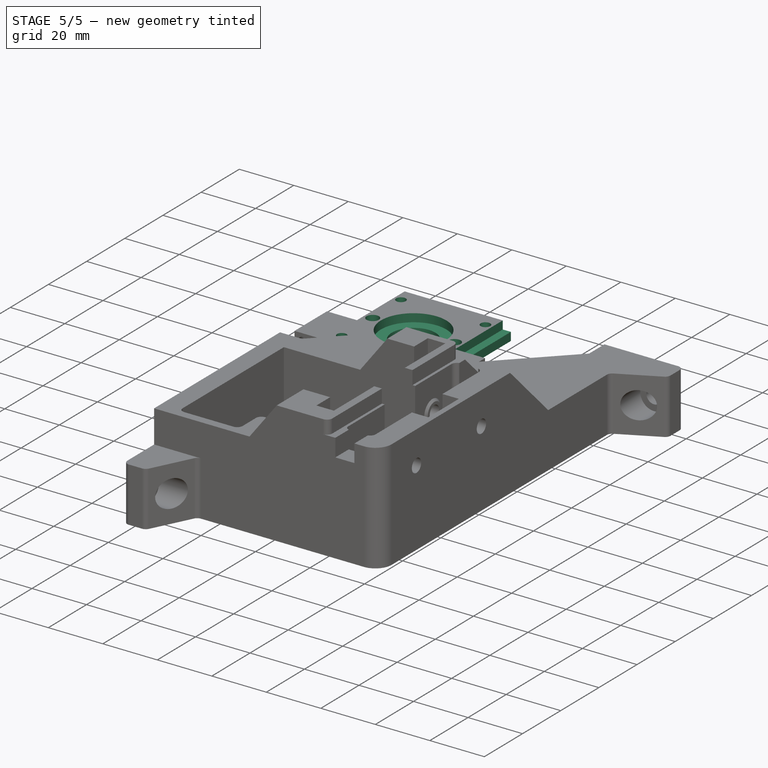
[diagram: stage 5 of 5 — iso view after this stage's code; geometry added in this stage tinted green]
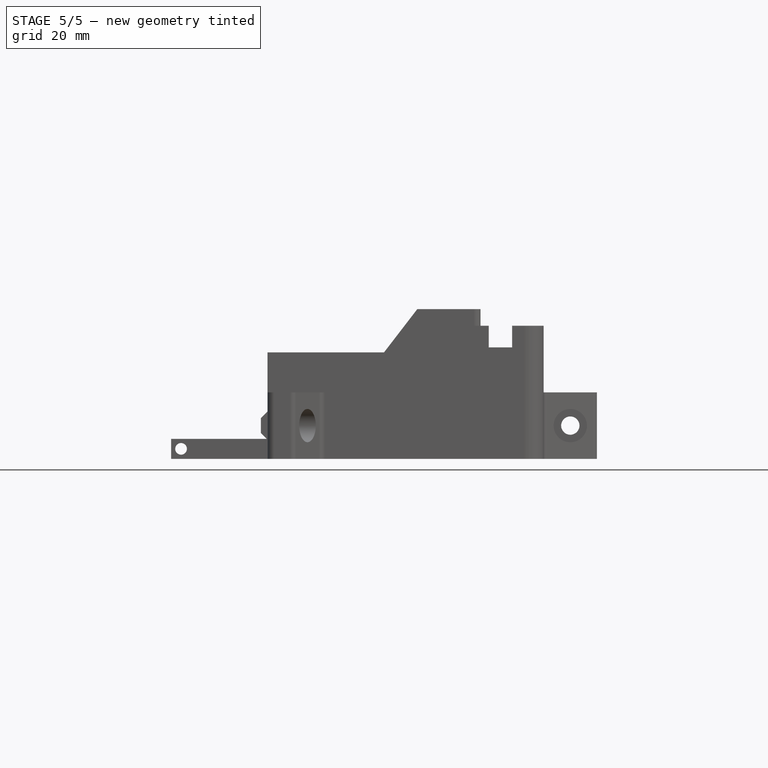
[diagram: stage 5 of 5 — front view after this stage's code; geometry added in this stage tinted green]
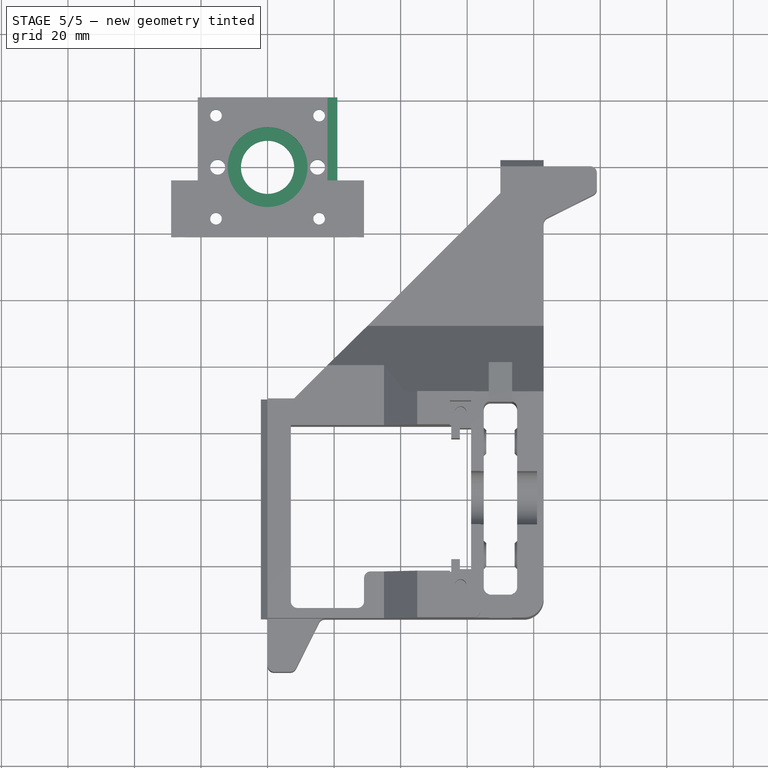
[diagram: stage 5 of 5 — top view after this stage's code; geometry added in this stage tinted green]
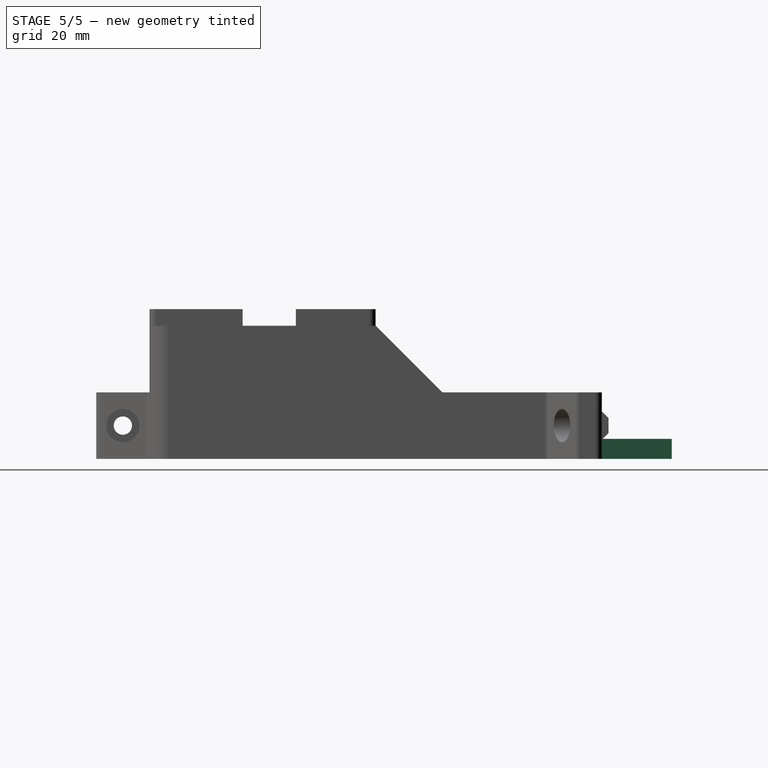
[diagram: stage 5 of 5 — right view after this stage's code; geometry added in this stage tinted green]
FEATURE [PartDesign::Mirrored] Mirrored027
  BaseFeature = -> Pocket125
  MirrorPlane = -> YZ_Plane244
  Originals = -> [Pocket125]
  Placement = pos=(0,0,0) rot=(1,0,0;1.5708rad)
  Suppressed = false
  TransformMode = 0
FEATURE [PartDesign::Pocket] Pocket126
  BaseFeature = -> Mirrored027
  Direction = (0,0,-1)
  Length = 5
  Length2 = 5
  Midplane = true
  Placement = pos=(0,0,0) rot=(1,0,0;1.5708rad)
  Profile = -> Sketch203
  ReferenceAxis = -> Sketch203 [N_Axis]
  Suppressed = false
  Type = 1
FEATURE [Sketcher::SketchObject] Sketch206
  ArcFitTolerance = 0
  AttachmentOffset = pos=(0,0,15.5) rot=(0,0,1;0rad)
  AttachmentSupport = -> [XZ_Plane244]
  FullyConstrained = true
  MakeInternals = false
  MapMode = 5
  Placement = pos=(0,-15.5,3.4e-15) rot=(1,0,0;1.5708rad)
  sketch-geometry (5):
    g0: LineSegment StartX=-19.25 StartY=0 StartZ=0 EndX=-15.5 EndY=0 EndZ=0
    g1: LineSegment StartX=-15.5 StartY=0 StartZ=0 EndX=-15.5 EndY=6 EndZ=0
    g2: LineSegment StartX=-15.5 StartY=6 StartZ=0 EndX=-17.25 EndY=6 EndZ=0
    g3: LineSegment StartX=-17.25 StartY=6 StartZ=0 EndX=-17.25 EndY=2 EndZ=0
    g4: LineSegment StartX=-17.25 StartY=2 StartZ=0 EndX=-19.25 EndY=0 EndZ=0
  constraints (15):
    c: PointOnObject(g0,g-1)
    c: PointOnObject(g0,g-1)
    c: Coincident(g0,g1)
    c: Vertical(g1)
    c: Coincident(g1,g2)
    c: Horizontal(g2)
    c: Coincident(g2,g3)
    c: Vertical(g3)
    c: Coincident(g3,g4)
    c: Coincident(g4,g0)
    c: Angle(g4) = -2.35619
    c: DistanceX(g4,g4) = 2
    c: DistanceX(g2,g2) = 1.75
    c: DistanceY(g1,g1) = 6
    c: DistanceX(g0) = -15.5
FEATURE [PartDesign::Groove] Groove003
  Angle = 360
  Angle2 = 60
  Axis = (0,2e-16,1)
  Base = (-15.5,-15.5,3.4e-15)
  BaseFeature = -> Pocket126
  Placement = pos=(0,0,0) rot=(1,0,0;1.5708rad)
  Profile = -> Sketch206
  ReferenceAxis = -> Sketch206 [Edge2]
  Reversed = true
  Suppressed = false
  Type = 0
FEATURE [PartDesign::PolarPattern] PolarPattern005
  Angle = 360
  Axis = -> Z_Axis244
  BaseFeature = -> Groove003
  Mode = 0
  Occurrences = 4
  Offset = 120
  Originals = -> [Groove003]
  Placement = pos=(0,0,0) rot=(1,0,0;1.5708rad)
  Suppressed = false
  TransformMode = 0
FEATURE [Sketcher::SketchObject] Sketch207
  ArcFitTolerance = 0
  AttachmentOffset = pos=(0,0,1.5) rot=(0,0,1;0rad)
  AttachmentSupport = -> [XY_Plane244]
  FullyConstrained = true
  MakeInternals = false
  MapMode = 5
  Placement = pos=(0,0,1.5) rot=(0,0,1;0rad)
  sketch-geometry (10):
    g0: LineSegment StartX=-13.4412 StartY=-2.7 StartZ=0 EndX=-11.8823 EndY=6.0125e-12 EndZ=0
    g1: LineSegment StartX=-11.8823 StartY=6.0125e-12 StartZ=0 EndX=-13.4412 EndY=2.7 EndZ=0
    g2: LineSegment StartX=-13.4412 StartY=2.7 StartZ=0 EndX=-16.5588 EndY=2.7 EndZ=0
    g3: LineSegment [constr] StartX=-16.5588 StartY=2.7 StartZ=0 EndX=-18.1177 EndY=6.0125e-12 EndZ=0
    g4: LineSegment [constr] StartX=-18.1177 StartY=6.0125e-12 StartZ=0 EndX=-16.5588 EndY=-2.7 EndZ=0
    g5: LineSegment StartX=-16.5588 StartY=-2.7 StartZ=0 EndX=-13.4412 EndY=-2.7 EndZ=0
    g6: Circle [constr] CenterX=-15 CenterY=0 CenterZ=0 NormalX=0 NormalY=0 NormalZ=1 AngleXU=0 Radius=3.11769
    g7: LineSegment StartX=-16.5588 StartY=2.7 StartZ=0 EndX=-21 EndY=2.7 EndZ=0
    g8: LineSegment StartX=-21 StartY=2.7 StartZ=0 EndX=-21 EndY=-2.7 EndZ=0
    g9: LineSegment StartX=-21 StartY=-2.7 StartZ=0 EndX=-16.5588 EndY=-2.7 EndZ=0
  constraints (25):
    c: Coincident(g0,g1)
    c: Coincident(g1,g2)
    c: Coincident(g2,g3)
    c: Coincident(g3,g4)
    c: Coincident(g4,g5)
    c: Coincident(g5,g0)
    c: Equal(g0, g1-g5) x5
    c: PointOnObject(g0,g6)
    c: PointOnObject(g1,g6)
    c: PointOnObject(g2,g6)
    c: PointOnObject(g3,g6)
    c: PointOnObject(g4,g6)
    c: PointOnObject(g5,g6)
    c: PointOnObject(g6,g-1)
    c: Horizontal(g2)
    c: DistanceY(g0,g1) = 5.4
    c: DistanceX(g6) = -15
    c: Coincident(g7,g2)
    c: Horizontal(g7)
    c: Coincident(g8,g7)
    c: Vertical(g8)
    c: Coincident(g9,g8)
    c: Coincident(g9,g5)
    c: Horizontal(g9)
    c: DistanceX(g8) = -21
FEATURE [Sketcher::SketchObject] Sketch208
  ArcFitTolerance = 0
  AttachmentOffset = pos=(0,0,1.5) rot=(0,0,1;0rad)
  AttachmentSupport = -> [XY_Plane244]
  FullyConstrained = true
  MakeInternals = false
  MapMode = 5
  Placement = pos=(0,0,1.5) rot=(0,0,1;0rad)
  sketch-geometry (1):
    g0: Circle CenterX=-15 CenterY=0 CenterZ=0 NormalX=0 NormalY=0 NormalZ=1 AngleXU=0 Radius=1.75
  constraints (3):
    c: PointOnObject(g0,g-1)
    c: DistanceX(g0) = -15
    c: Diameter(g0) = 3.5
FEATURE [Sketcher::SketchObject] Sketch209
  ArcFitTolerance = 0
  AttachmentOffset = pos=(0,0,4.9) rot=(0,0,1;0rad)
  AttachmentSupport = -> [XY_Plane244]
  FullyConstrained = true
  MakeInternals = false
  MapMode = 5
  Placement = pos=(0,0,4.9) rot=(0,0,1;0rad)
  sketch-geometry (1):
    g0: Circle CenterX=-15 CenterY=0 CenterZ=0 NormalX=0 NormalY=0 NormalZ=1 AngleXU=0 Radius=1.75
  constraints (3):
    c: PointOnObject(g0,g-1)
    c: Diameter(g0) = 3.5
    c: DistanceX(g0) = -15
FEATURE [Sketcher::SketchObject] Sketch210
  ArcFitTolerance = 0
  AttachmentOffset = pos=(0,0,3) rot=(0,0,1;0rad)
  AttachmentSupport = -> [XY_Plane244]
  FullyConstrained = true
  MakeInternals = false
  MapMode = 5
  Placement = pos=(0,0,3) rot=(0,0,1;0rad)
  sketch-geometry (1):
    g0: Circle CenterX=0 CenterY=0 CenterZ=0 NormalX=0 NormalY=0 NormalZ=1 AngleXU=0 Radius=12
  constraints (2):
    c: Coincident(g0,g-1)
    c: Diameter(g0) = 24
FEATURE [PartDesign::Pocket] Pocket130
  BaseFeature = -> PolarPattern005
  Direction = (0,0,-1)
  Length = 5
  Length2 = 5
  Placement = pos=(0,0,0) rot=(1,0,0;1.5708rad)
  Profile = -> Sketch210
  ReferenceAxis = -> Sketch210 [N_Axis]
  Reversed = true
  Suppressed = false
  Type = 1
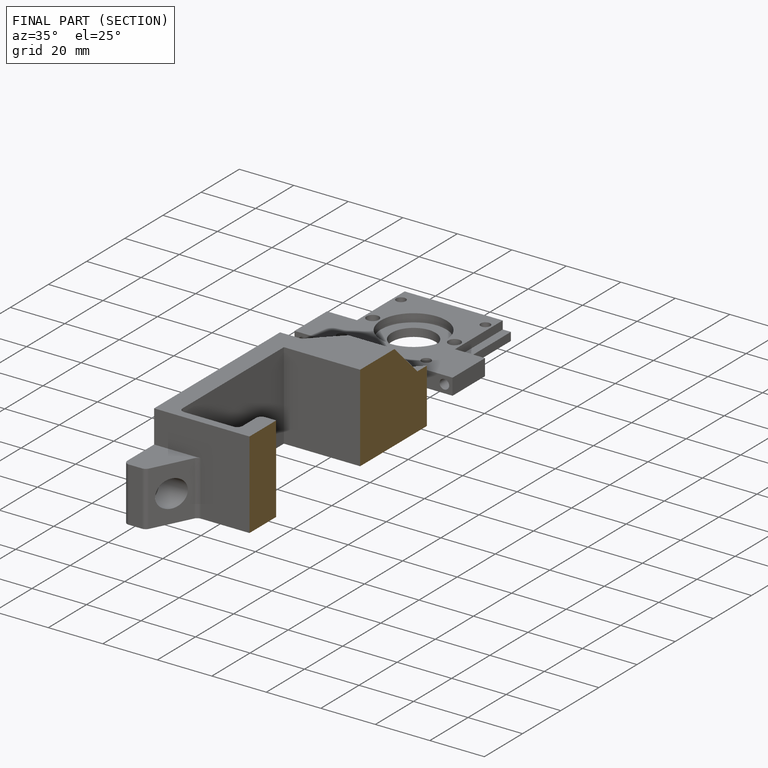
[diagram: finished part — half-section view (interior)]
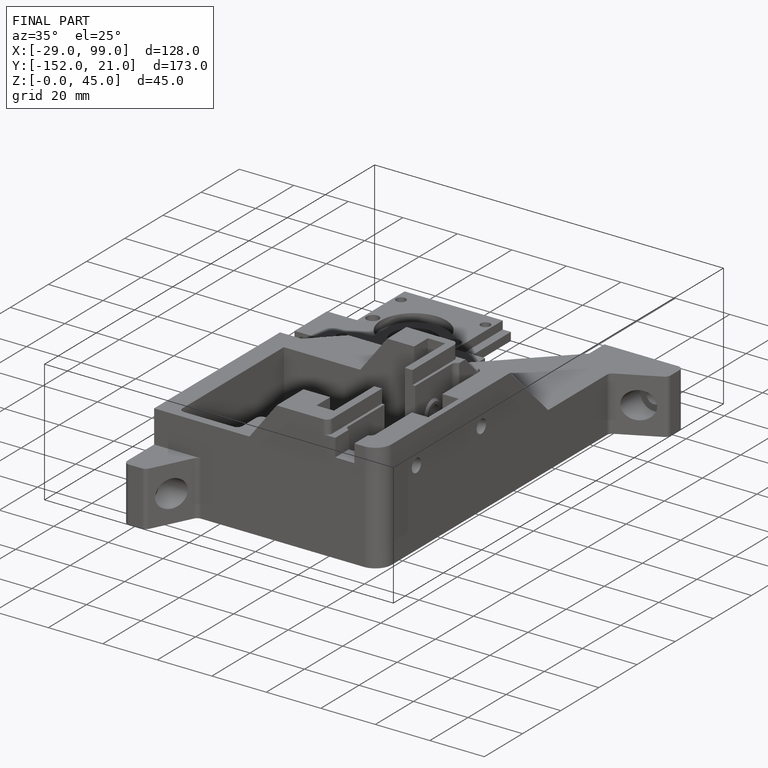
[diagram: finished part — iso view with bounding-box wireframe]
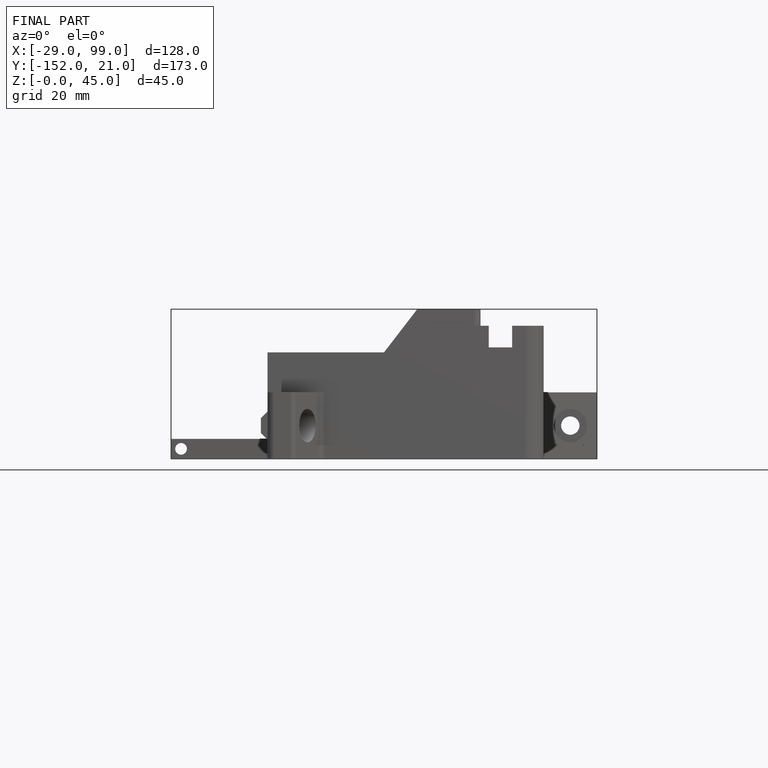
[diagram: finished part — front view with bounding-box wireframe]
